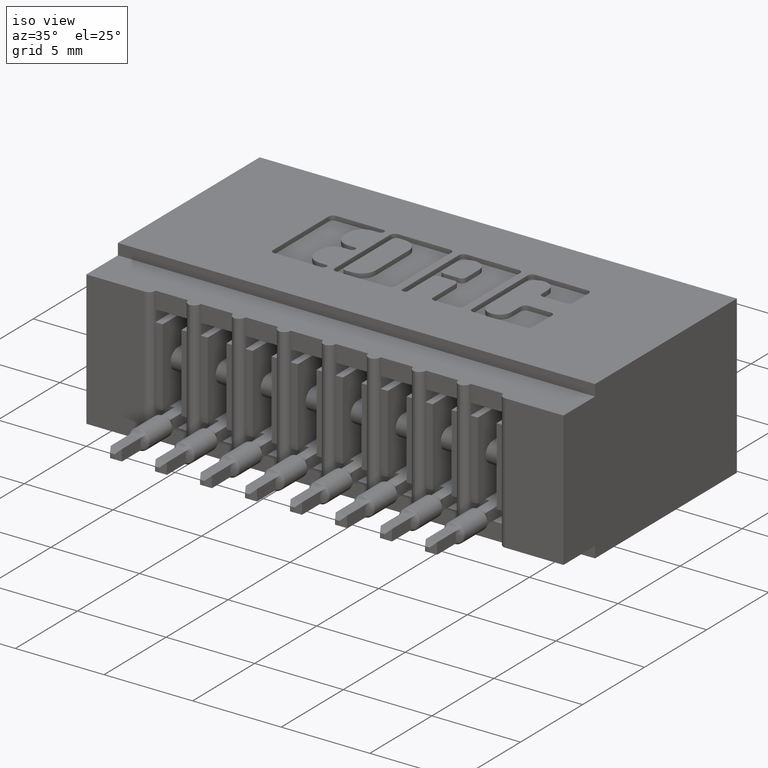
[diagram: clean part render]
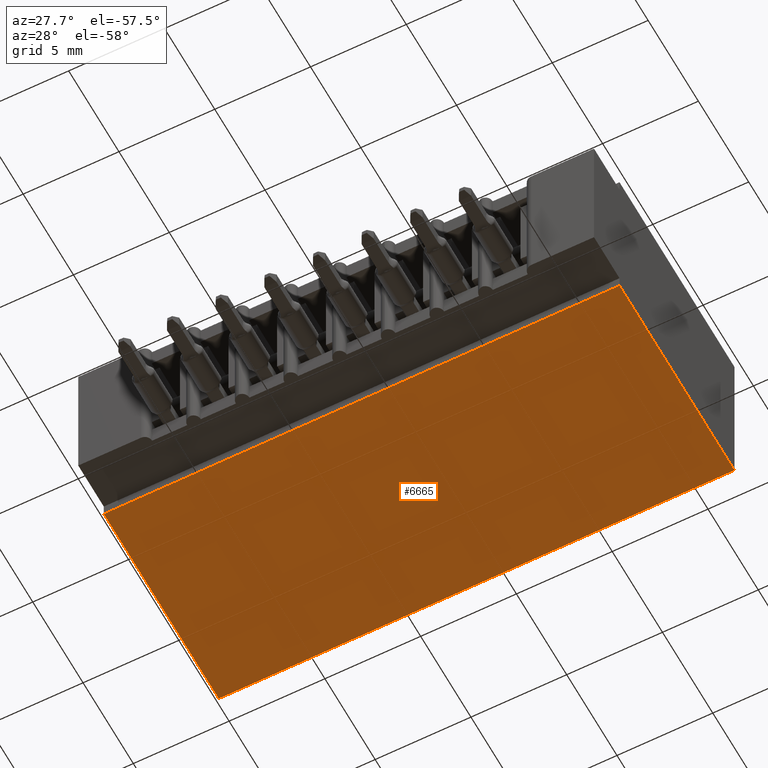
[diagram: tour spotlight — one face highlighted and labeled with its STEP entity id]
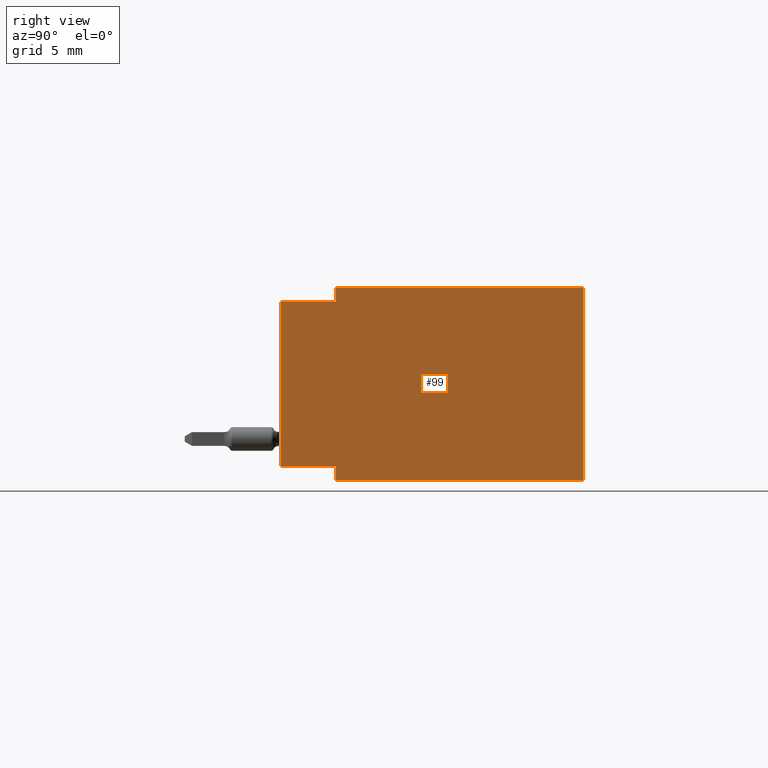
[diagram: tour spotlight — one face highlighted and labeled with its STEP entity id]
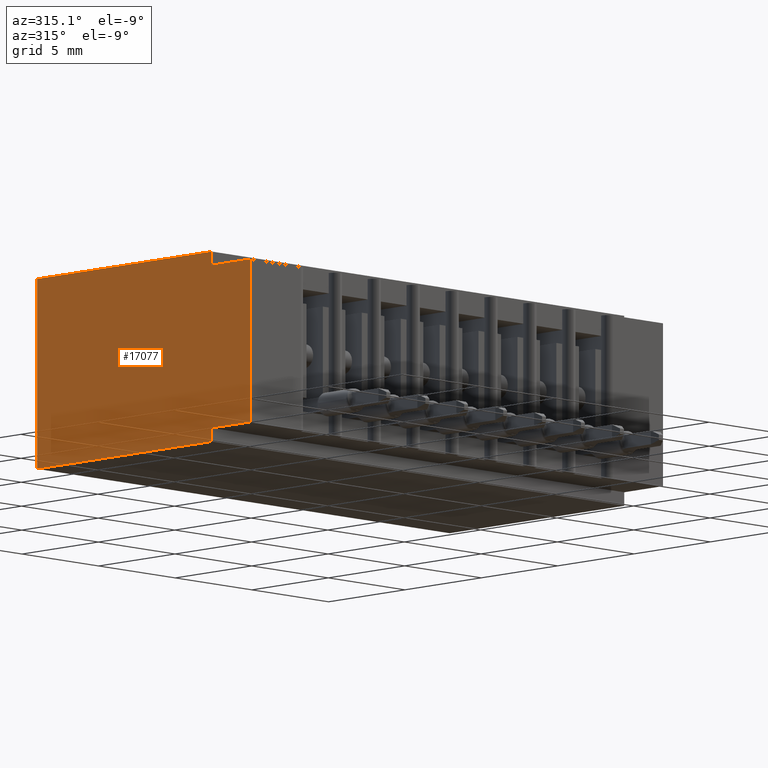
[diagram: tour spotlight — one face highlighted and labeled with its STEP entity id]
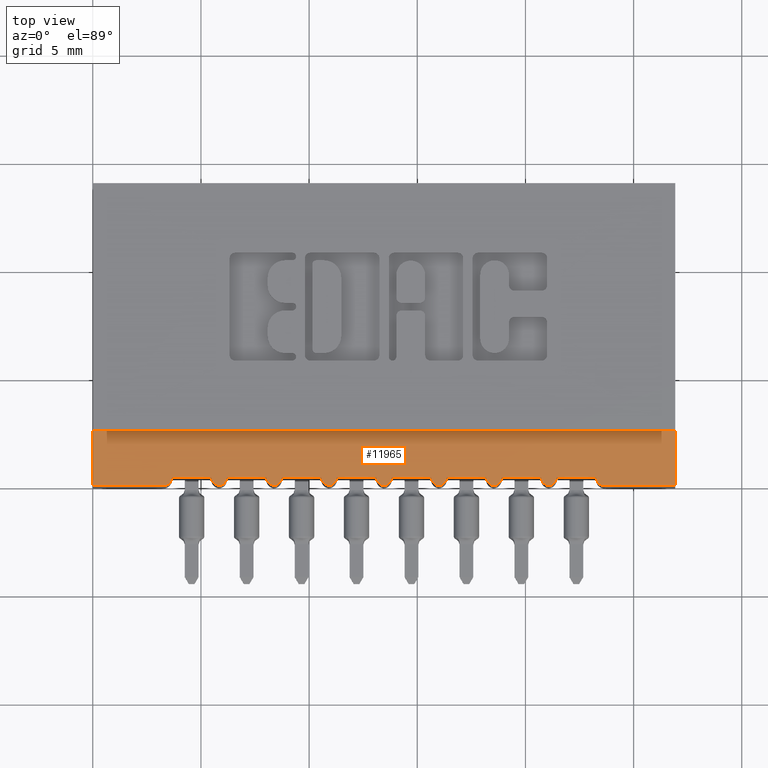
[diagram: tour spotlight — one face highlighted and labeled with its STEP entity id]
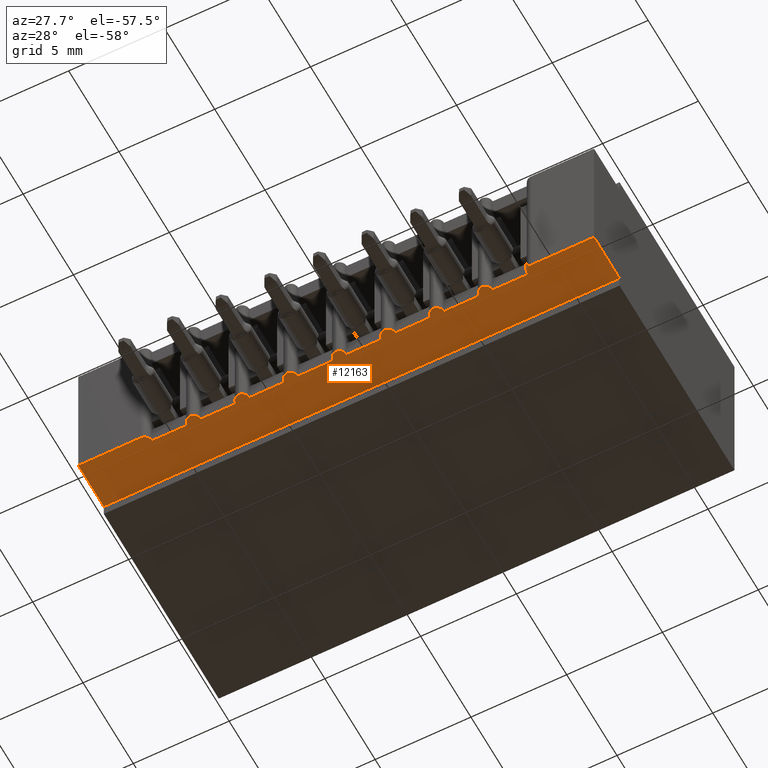
[diagram: tour spotlight — one face highlighted and labeled with its STEP entity id]
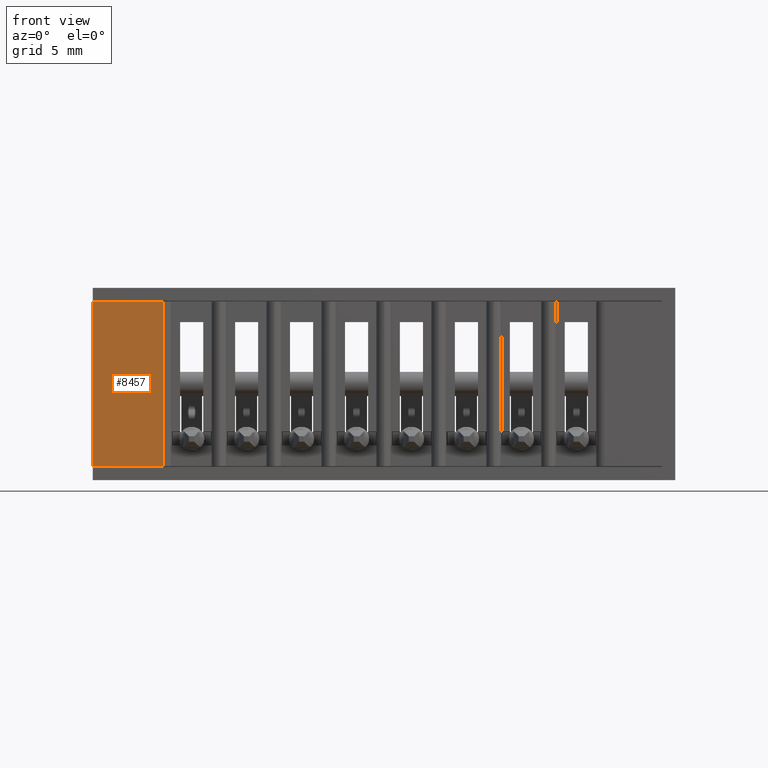
[diagram: tour spotlight — one face highlighted and labeled with its STEP entity id]
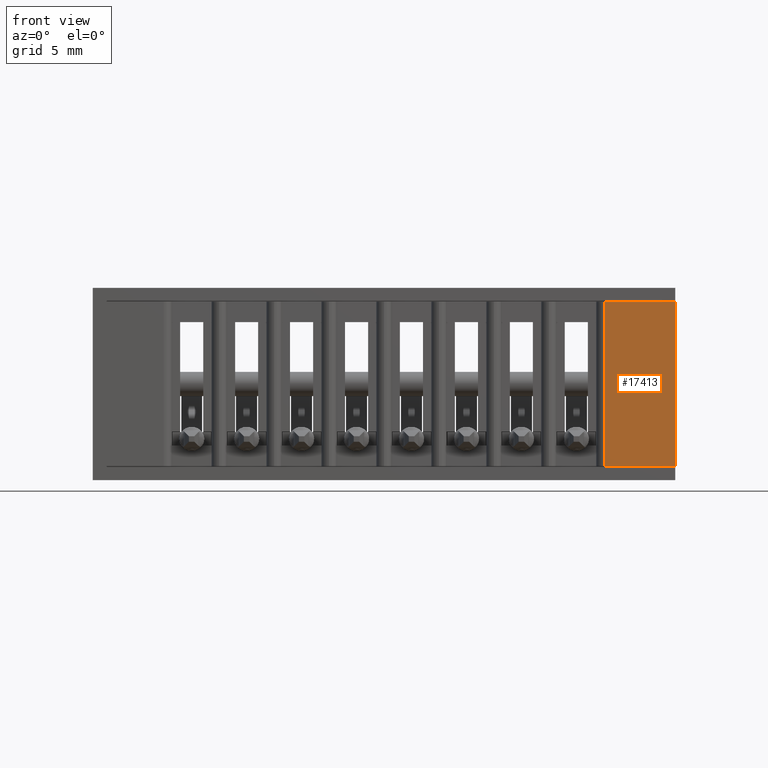
[diagram: tour spotlight — one face highlighted and labeled with its STEP entity id]
A machine part: a face-by-face anatomy tour. The part has 991 B-rep faces; the first image is the clean iso view, then the 7 largest visible faces are spotlighted one at a time (largest first), each with its STEP entity span.

Face 1 — auxiliary view, entity #6665. In plain terms, the highlighted planar face has unit normal (0, 0, 1).
Definition (entity closure, byte-faithful):
#203 = DIRECTION ( 'NONE',  ( -0.0000000000000000000, -1.000000000000000000, -0.0000000000000000000 ) ) ;
#255 = VECTOR ( 'NONE', #10882, 39.37007874015748100 ) ;
#368 = CARTESIAN_POINT ( 'NONE',  ( 0.0000000000000000000, 0.5500000000000000400, -0.3499999999999999800 ) ) ;
#831 = CARTESIAN_POINT ( 'NONE',  ( 1.060000000000000100, 0.5500000000000000400, -0.3499999999999999800 ) ) ;
#838 = EDGE_CURVE ( 'NONE', #9658, #8423, #14376, .T. ) ;
#2014 = EDGE_CURVE ( 'NONE', #4021, #5165, #14112, .T. ) ;
#3668 = EDGE_CURVE ( 'NONE', #5165, #8423, #10347, .T. ) ;
#4021 = VERTEX_POINT ( 'NONE', #831 ) ;
#4522 = CARTESIAN_POINT ( 'NONE',  ( 1.060000000000000100, 0.5500000000000000400, -0.3499999999999999800 ) ) ;
#5165 = VERTEX_POINT ( 'NONE', #8118 ) ;
#5338 = CARTESIAN_POINT ( 'NONE',  ( 0.0000000000000000000, 0.5500000000000000400, -0.3499999999999999800 ) ) ;
#5533 = VECTOR ( 'NONE', #5905, 39.37007874015748100 ) ;
#5626 = DIRECTION ( 'NONE',  ( -1.000000000000000000, -0.0000000000000000000, -0.0000000000000000000 ) ) ;
#5905 = DIRECTION ( 'NONE',  ( -0.0000000000000000000, -1.000000000000000000, -0.0000000000000000000 ) ) ;
#5960 = PLANE ( 'NONE',  #12107 ) ;
#6576 = ORIENTED_EDGE ( 'NONE', *, *, #3668, .T. ) ;
#6665 = ADVANCED_FACE ( 'NONE', ( #16054 ), #5960, .F. ) ;
#6673 = VECTOR ( 'NONE', #5626, 39.37007874015748100 ) ;
#7109 = CARTESIAN_POINT ( 'NONE',  ( 0.0000000000000000000, 0.5500000000000000400, -0.3499999999999999800 ) ) ;
#8118 = CARTESIAN_POINT ( 'NONE',  ( 1.060000000000000100, 0.1000000000000000100, -0.3499999999999999800 ) ) ;
#8423 = VERTEX_POINT ( 'NONE', #12237 ) ;
#8740 = DIRECTION ( 'NONE',  ( 1.000000000000000000, 0.0000000000000000000, -0.0000000000000000000 ) ) ;
#9658 = VERTEX_POINT ( 'NONE', #368 ) ;
#10347 = LINE ( 'NONE', #15231, #6673 ) ;
#10882 = DIRECTION ( 'NONE',  ( -1.000000000000000000, -0.0000000000000000000, -0.0000000000000000000 ) ) ;
#11418 = CARTESIAN_POINT ( 'NONE',  ( 0.0000000000000000000, 0.5500000000000000400, -0.3499999999999999800 ) ) ;
#12107 = AXIS2_PLACEMENT_3D ( 'NONE', #11418, #16922, #8740 ) ;
#12237 = CARTESIAN_POINT ( 'NONE',  ( 0.0000000000000000000, 0.1000000000000000100, -0.3499999999999999800 ) ) ;
#13628 = ORIENTED_EDGE ( 'NONE', *, *, #838, .F. ) ;
#13672 = ORIENTED_EDGE ( 'NONE', *, *, #15712, .F. ) ;
#14065 = ORIENTED_EDGE ( 'NONE', *, *, #2014, .T. ) ;
#14112 = LINE ( 'NONE', #4522, #5533 ) ;
#14376 = LINE ( 'NONE', #7109, #17593 ) ;
#14919 = LINE ( 'NONE', #5338, #255 ) ;
#15231 = CARTESIAN_POINT ( 'NONE',  ( 1.060000000000000100, 0.1000000000000000100, -0.3499999999999999800 ) ) ;
#15384 = EDGE_LOOP ( 'NONE', ( #14065, #6576, #13628, #13672 ) ) ;
#15712 = EDGE_CURVE ( 'NONE', #4021, #9658, #14919, .T. ) ;
#16054 = FACE_OUTER_BOUND ( 'NONE', #15384, .T. ) ;
#16922 = DIRECTION ( 'NONE',  ( 0.0000000000000000000, 0.0000000000000000000, 1.000000000000000000 ) ) ;
#17593 = VECTOR ( 'NONE', #203, 39.37007874015748100 ) ;

Face 2 — right view, entity #99. In plain terms, the highlighted planar face has unit normal (-1, 0, 0).
Definition (entity closure, byte-faithful):
#99 = ADVANCED_FACE ( 'NONE', ( #4520 ), #3218, .F. ) ;
#259 = VERTEX_POINT ( 'NONE', #10659 ) ;
#356 = CARTESIAN_POINT ( 'NONE',  ( 1.060000000000000100, 0.5500000000000000400, 0.0000000000000000000 ) ) ;
#831 = CARTESIAN_POINT ( 'NONE',  ( 1.060000000000000100, 0.5500000000000000400, -0.3499999999999999800 ) ) ;
#915 = EDGE_CURVE ( 'NONE', #8973, #15291, #2543, .T. ) ;
#1378 = ORIENTED_EDGE ( 'NONE', *, *, #6450, .T. ) ;
#1394 = LINE ( 'NONE', #9764, #5084 ) ;
#1468 = DIRECTION ( 'NONE',  ( -0.0000000000000000000, -0.0000000000000000000, -1.000000000000000000 ) ) ;
#1496 = CARTESIAN_POINT ( 'NONE',  ( 1.060000000000000100, 0.0000000000000000000, -0.02500000000000000500 ) ) ;
#1805 = EDGE_CURVE ( 'NONE', #6286, #4021, #2942, .T. ) ;
#2014 = EDGE_CURVE ( 'NONE', #4021, #5165, #14112, .T. ) ;
#2347 = CARTESIAN_POINT ( 'NONE',  ( 1.060000000000000100, 0.5500000000000000400, 0.0000000000000000000 ) ) ;
#2471 = EDGE_CURVE ( 'NONE', #259, #5165, #1394, .T. ) ;
#2543 = LINE ( 'NONE', #16884, #17172 ) ;
#2623 = ORIENTED_EDGE ( 'NONE', *, *, #1805, .F. ) ;
#2942 = LINE ( 'NONE', #12011, #12638 ) ;
#3040 = EDGE_LOOP ( 'NONE', ( #1378, #17612, #14535, #16570, #8482, #7132, #2623, #7123 ) ) ;
#3218 = PLANE ( 'NONE',  #6443 ) ;
#3224 = VECTOR ( 'NONE', #15742, 39.37007874015748100 ) ;
#4021 = VERTEX_POINT ( 'NONE', #831 ) ;
#4520 = FACE_OUTER_BOUND ( 'NONE', #3040, .T. ) ;
#4522 = CARTESIAN_POINT ( 'NONE',  ( 1.060000000000000100, 0.5500000000000000400, -0.3499999999999999800 ) ) ;
#4627 = DIRECTION ( 'NONE',  ( -1.000000000000000000, 0.0000000000000000000, 0.0000000000000000000 ) ) ;
#4762 = CARTESIAN_POINT ( 'NONE',  ( 1.060000000000000100, 0.0000000000000000000, -0.3249999999999999600 ) ) ;
#4804 = EDGE_CURVE ( 'NONE', #6286, #8106, #16916, .T. ) ;
#5084 = VECTOR ( 'NONE', #1468, 39.37007874015748100 ) ;
#5165 = VERTEX_POINT ( 'NONE', #8118 ) ;
#5331 = VERTEX_POINT ( 'NONE', #9927 ) ;
#5533 = VECTOR ( 'NONE', #5905, 39.37007874015748100 ) ;
#5905 = DIRECTION ( 'NONE',  ( -0.0000000000000000000, -1.000000000000000000, -0.0000000000000000000 ) ) ;
#5983 = VECTOR ( 'NONE', #10060, 39.37007874015748100 ) ;
#6286 = VERTEX_POINT ( 'NONE', #2347 ) ;
#6443 = AXIS2_PLACEMENT_3D ( 'NONE', #7319, #4627, #14204 ) ;
#6450 = EDGE_CURVE ( 'NONE', #8106, #5331, #17129, .T. ) ;
#6469 = DIRECTION ( 'NONE',  ( 0.0000000000000000000, 0.0000000000000000000, -1.000000000000000000 ) ) ;
#7123 = ORIENTED_EDGE ( 'NONE', *, *, #4804, .T. ) ;
#7132 = ORIENTED_EDGE ( 'NONE', *, *, #2014, .F. ) ;
#7319 = CARTESIAN_POINT ( 'NONE',  ( 1.060000000000000100, 0.5500000000000000400, 0.0000000000000000000 ) ) ;
#8106 = VERTEX_POINT ( 'NONE', #11358 ) ;
#8118 = CARTESIAN_POINT ( 'NONE',  ( 1.060000000000000100, 0.1000000000000000100, -0.3499999999999999800 ) ) ;
#8482 = ORIENTED_EDGE ( 'NONE', *, *, #2471, .T. ) ;
#8693 = DIRECTION ( 'NONE',  ( 0.0000000000000000000, 0.0000000000000000000, -1.000000000000000000 ) ) ;
#8973 = VERTEX_POINT ( 'NONE', #1496 ) ;
#9343 = CARTESIAN_POINT ( 'NONE',  ( 1.060000000000000100, 0.0000000000000000000, -0.02500000000000000500 ) ) ;
#9764 = CARTESIAN_POINT ( 'NONE',  ( 1.060000000000000100, 0.1000000000000000100, -0.3499999999999999800 ) ) ;
#9927 = CARTESIAN_POINT ( 'NONE',  ( 1.060000000000000100, 0.1000000000000000100, -0.02500000000000000500 ) ) ;
#10060 = DIRECTION ( 'NONE',  ( -0.0000000000000000000, -1.000000000000000000, -0.0000000000000000000 ) ) ;
#10315 = EDGE_CURVE ( 'NONE', #5331, #8973, #16248, .T. ) ;
#10583 = LINE ( 'NONE', #4762, #3224 ) ;
#10600 = DIRECTION ( 'NONE',  ( -0.0000000000000000000, -1.000000000000000000, -0.0000000000000000000 ) ) ;
#10659 = CARTESIAN_POINT ( 'NONE',  ( 1.060000000000000100, 0.1000000000000000100, -0.3249999999999999600 ) ) ;
#11358 = CARTESIAN_POINT ( 'NONE',  ( 1.060000000000000100, 0.1000000000000000100, 0.0000000000000000000 ) ) ;
#12011 = CARTESIAN_POINT ( 'NONE',  ( 1.060000000000000100, 0.5500000000000000400, 0.0000000000000000000 ) ) ;
#12611 = VECTOR ( 'NONE', #10600, 39.37007874015748100 ) ;
#12638 = VECTOR ( 'NONE', #6469, 39.37007874015748100 ) ;
#14032 = CARTESIAN_POINT ( 'NONE',  ( 1.060000000000000100, 0.0000000000000000000, -0.3249999999999999600 ) ) ;
#14112 = LINE ( 'NONE', #4522, #5533 ) ;
#14204 = DIRECTION ( 'NONE',  ( 0.0000000000000000000, 0.0000000000000000000, 1.000000000000000000 ) ) ;
#14535 = ORIENTED_EDGE ( 'NONE', *, *, #915, .T. ) ;
#14894 = EDGE_CURVE ( 'NONE', #15291, #259, #10583, .T. ) ;
#15291 = VERTEX_POINT ( 'NONE', #14032 ) ;
#15742 = DIRECTION ( 'NONE',  ( 0.0000000000000000000, 1.000000000000000000, 0.0000000000000000000 ) ) ;
#16248 = LINE ( 'NONE', #9343, #12611 ) ;
#16289 = DIRECTION ( 'NONE',  ( 0.0000000000000000000, 0.0000000000000000000, -1.000000000000000000 ) ) ;
#16570 = ORIENTED_EDGE ( 'NONE', *, *, #14894, .T. ) ;
#16691 = VECTOR ( 'NONE', #16289, 39.37007874015748100 ) ;
#16884 = CARTESIAN_POINT ( 'NONE',  ( 1.060000000000000100, 0.0000000000000000000, 0.0000000000000000000 ) ) ;
#16916 = LINE ( 'NONE', #356, #5983 ) ;
#17129 = LINE ( 'NONE', #17707, #16691 ) ;
#17172 = VECTOR ( 'NONE', #8693, 39.37007874015748100 ) ;
#17612 = ORIENTED_EDGE ( 'NONE', *, *, #10315, .T. ) ;
#17707 = CARTESIAN_POINT ( 'NONE',  ( 1.060000000000000100, 0.1000000000000000100, 0.0000000000000000000 ) ) ;

Face 3 — auxiliary view, entity #17077. In plain terms, the highlighted planar face has unit normal (1, 0, 0).
Definition (entity closure, byte-faithful):
#203 = DIRECTION ( 'NONE',  ( -0.0000000000000000000, -1.000000000000000000, -0.0000000000000000000 ) ) ;
#368 = CARTESIAN_POINT ( 'NONE',  ( 0.0000000000000000000, 0.5500000000000000400, -0.3499999999999999800 ) ) ;
#665 = VERTEX_POINT ( 'NONE', #11460 ) ;
#838 = EDGE_CURVE ( 'NONE', #9658, #8423, #14376, .T. ) ;
#1123 = VERTEX_POINT ( 'NONE', #2293 ) ;
#1142 = ORIENTED_EDGE ( 'NONE', *, *, #838, .T. ) ;
#1754 = VECTOR ( 'NONE', #9919, 39.37007874015748100 ) ;
#1795 = ORIENTED_EDGE ( 'NONE', *, *, #7815, .F. ) ;
#1810 = CARTESIAN_POINT ( 'NONE',  ( 0.0000000000000000000, 0.5500000000000000400, 0.0000000000000000000 ) ) ;
#1944 = VECTOR ( 'NONE', #12769, 39.37007874015748100 ) ;
#2042 = LINE ( 'NONE', #10564, #12592 ) ;
#2293 = CARTESIAN_POINT ( 'NONE',  ( 0.0000000000000000000, 0.1000000000000000100, 0.0000000000000000000 ) ) ;
#2440 = VERTEX_POINT ( 'NONE', #12324 ) ;
#3163 = EDGE_CURVE ( 'NONE', #1123, #7624, #16551, .T. ) ;
#3204 = CARTESIAN_POINT ( 'NONE',  ( 0.0000000000000000000, 0.1000000000000000100, -0.3249999999999999600 ) ) ;
#4076 = CARTESIAN_POINT ( 'NONE',  ( 0.0000000000000000000, 0.0000000000000000000, -0.3249999999999999600 ) ) ;
#4112 = EDGE_CURVE ( 'NONE', #17365, #8423, #16727, .T. ) ;
#4302 = CARTESIAN_POINT ( 'NONE',  ( 0.0000000000000000000, 0.1000000000000000100, 0.0000000000000000000 ) ) ;
#4751 = VECTOR ( 'NONE', #16663, 39.37007874015748100 ) ;
#5778 = VECTOR ( 'NONE', #9456, 39.37007874015748100 ) ;
#7109 = CARTESIAN_POINT ( 'NONE',  ( 0.0000000000000000000, 0.5500000000000000400, -0.3499999999999999800 ) ) ;
#7386 = EDGE_LOOP ( 'NONE', ( #9327, #15307, #8877, #1795, #10070, #1142, #8127, #10667 ) ) ;
#7624 = VERTEX_POINT ( 'NONE', #12974 ) ;
#7815 = EDGE_CURVE ( 'NONE', #665, #1123, #8938, .T. ) ;
#7994 = DIRECTION ( 'NONE',  ( 1.000000000000000000, -0.0000000000000000000, 0.0000000000000000000 ) ) ;
#8127 = ORIENTED_EDGE ( 'NONE', *, *, #4112, .F. ) ;
#8423 = VERTEX_POINT ( 'NONE', #12237 ) ;
#8472 = EDGE_CURVE ( 'NONE', #7624, #2440, #15973, .T. ) ;
#8877 = ORIENTED_EDGE ( 'NONE', *, *, #3163, .F. ) ;
#8938 = LINE ( 'NONE', #12029, #15786 ) ;
#9327 = ORIENTED_EDGE ( 'NONE', *, *, #11371, .T. ) ;
#9456 = DIRECTION ( 'NONE',  ( -0.0000000000000000000, -0.0000000000000000000, -1.000000000000000000 ) ) ;
#9658 = VERTEX_POINT ( 'NONE', #368 ) ;
#9919 = DIRECTION ( 'NONE',  ( -0.0000000000000000000, -1.000000000000000000, -0.0000000000000000000 ) ) ;
#10014 = VERTEX_POINT ( 'NONE', #4076 ) ;
#10070 = ORIENTED_EDGE ( 'NONE', *, *, #17353, .F. ) ;
#10564 = CARTESIAN_POINT ( 'NONE',  ( 0.0000000000000000000, 0.0000000000000000000, 0.0000000000000000000 ) ) ;
#10660 = DIRECTION ( 'NONE',  ( -0.0000000000000000000, -1.000000000000000000, -0.0000000000000000000 ) ) ;
#10667 = ORIENTED_EDGE ( 'NONE', *, *, #13943, .F. ) ;
#10721 = PLANE ( 'NONE',  #14995 ) ;
#10768 = DIRECTION ( 'NONE',  ( 0.0000000000000000000, 1.000000000000000000, 0.0000000000000000000 ) ) ;
#11284 = CARTESIAN_POINT ( 'NONE',  ( 0.0000000000000000000, 0.0000000000000000000, -0.02500000000000000500 ) ) ;
#11371 = EDGE_CURVE ( 'NONE', #10014, #2440, #2042, .T. ) ;
#11460 = CARTESIAN_POINT ( 'NONE',  ( 0.0000000000000000000, 0.5500000000000000400, 0.0000000000000000000 ) ) ;
#11889 = LINE ( 'NONE', #12015, #14657 ) ;
#12015 = CARTESIAN_POINT ( 'NONE',  ( 0.0000000000000000000, 0.0000000000000000000, -0.3249999999999999600 ) ) ;
#12029 = CARTESIAN_POINT ( 'NONE',  ( 0.0000000000000000000, 0.5500000000000000400, 0.0000000000000000000 ) ) ;
#12237 = CARTESIAN_POINT ( 'NONE',  ( 0.0000000000000000000, 0.1000000000000000100, -0.3499999999999999800 ) ) ;
#12324 = CARTESIAN_POINT ( 'NONE',  ( 0.0000000000000000000, 0.0000000000000000000, -0.02500000000000000500 ) ) ;
#12592 = VECTOR ( 'NONE', #13298, 39.37007874015748100 ) ;
#12769 = DIRECTION ( 'NONE',  ( -0.0000000000000000000, -0.0000000000000000000, 1.000000000000000000 ) ) ;
#12974 = CARTESIAN_POINT ( 'NONE',  ( 0.0000000000000000000, 0.1000000000000000100, -0.02500000000000000500 ) ) ;
#13298 = DIRECTION ( 'NONE',  ( -0.0000000000000000000, -0.0000000000000000000, 1.000000000000000000 ) ) ;
#13943 = EDGE_CURVE ( 'NONE', #10014, #17365, #11889, .T. ) ;
#14376 = LINE ( 'NONE', #7109, #17593 ) ;
#14657 = VECTOR ( 'NONE', #10768, 39.37007874015748100 ) ;
#14859 = CARTESIAN_POINT ( 'NONE',  ( 0.0000000000000000000, 0.1000000000000000100, -0.3499999999999999800 ) ) ;
#14995 = AXIS2_PLACEMENT_3D ( 'NONE', #16204, #7994, #17579 ) ;
#15307 = ORIENTED_EDGE ( 'NONE', *, *, #8472, .F. ) ;
#15786 = VECTOR ( 'NONE', #10660, 39.37007874015748100 ) ;
#15973 = LINE ( 'NONE', #11284, #1754 ) ;
#16204 = CARTESIAN_POINT ( 'NONE',  ( 0.0000000000000000000, 0.5500000000000000400, 0.0000000000000000000 ) ) ;
#16551 = LINE ( 'NONE', #4302, #4751 ) ;
#16565 = LINE ( 'NONE', #1810, #1944 ) ;
#16663 = DIRECTION ( 'NONE',  ( 0.0000000000000000000, 0.0000000000000000000, -1.000000000000000000 ) ) ;
#16727 = LINE ( 'NONE', #14859, #5778 ) ;
#17077 = ADVANCED_FACE ( 'NONE', ( #17226 ), #10721, .F. ) ;
#17226 = FACE_OUTER_BOUND ( 'NONE', #7386, .T. ) ;
#17353 = EDGE_CURVE ( 'NONE', #9658, #665, #16565, .T. ) ;
#17365 = VERTEX_POINT ( 'NONE', #3204 ) ;
#17579 = DIRECTION ( 'NONE',  ( 0.0000000000000000000, 0.0000000000000000000, -1.000000000000000000 ) ) ;
#17593 = VECTOR ( 'NONE', #203, 39.37007874015748100 ) ;

Face 4 — top view, entity #11965. In plain terms, the highlighted planar face has unit normal (0, 0, -1).
Definition (entity closure, byte-faithful):
#6 = AXIS2_PLACEMENT_3D ( 'NONE', #14142, #5935, #15520 ) ;
#16 = VERTEX_POINT ( 'NONE', #16989 ) ;
#21 = VERTEX_POINT ( 'NONE', #14219 ) ;
#35 = CARTESIAN_POINT ( 'NONE',  ( 1.060000000000000100, 0.0000000000000000000, -0.02500000000000000500 ) ) ;
#128 = DIRECTION ( 'NONE',  ( -0.0000000000000000000, 0.0000000000000000000, 1.000000000000000000 ) ) ;
#430 = VERTEX_POINT ( 'NONE', #1331 ) ;
#454 = DIRECTION ( 'NONE',  ( 1.000000000000000000, 0.0000000000000000000, 0.0000000000000000000 ) ) ;
#531 = VECTOR ( 'NONE', #4827, 39.37007874015748100 ) ;
#532 = DIRECTION ( 'NONE',  ( 0.0000000000000000000, -0.0000000000000000000, -1.000000000000000000 ) ) ;
#546 = ORIENTED_EDGE ( 'NONE', *, *, #9661, .T. ) ;
#549 = CARTESIAN_POINT ( 'NONE',  ( 0.3589999999999997100, 0.01499999999999999400, -0.02499999999999999400 ) ) ;
#670 = DIRECTION ( 'NONE',  ( 0.0000000000000000000, -0.0000000000000000000, -1.000000000000000000 ) ) ;
#692 = EDGE_CURVE ( 'NONE', #14464, #14417, #17383, .T. ) ;
#743 = CARTESIAN_POINT ( 'NONE',  ( 0.5159999999999996800, 0.01499999999999993200, -0.02500000000000000500 ) ) ;
#767 = CIRCLE ( 'NONE', #17564, 0.01499999999999997700 ) ;
#770 = VERTEX_POINT ( 'NONE', #17204 ) ;
#875 = VERTEX_POINT ( 'NONE', #3066 ) ;
#944 = DIRECTION ( 'NONE',  ( 1.000000000000000000, -0.0000000000000000000, -2.307304048702925100E-016 ) ) ;
#950 = VECTOR ( 'NONE', #14423, 39.37007874015748100 ) ;
#1177 = FACE_OUTER_BOUND ( 'NONE', #1994, .T. ) ;
#1194 = CARTESIAN_POINT ( 'NONE',  ( 0.1289999999999997000, 0.01499999999999997700, -0.02500000000000000500 ) ) ;
#1331 = CARTESIAN_POINT ( 'NONE',  ( 0.5299999999999992500, 3.337045290420235600E-005, -0.02500000000000000500 ) ) ;
#1422 = VECTOR ( 'NONE', #3179, 39.37007874015748100 ) ;
#1488 = DIRECTION ( 'NONE',  ( -0.0000000000000000000, 0.0000000000000000000, 1.000000000000000000 ) ) ;
#1496 = CARTESIAN_POINT ( 'NONE',  ( 1.060000000000000100, 0.0000000000000000000, -0.02500000000000000500 ) ) ;
#1544 = EDGE_CURVE ( 'NONE', #875, #11130, #5986, .T. ) ;
#1634 = LINE ( 'NONE', #2209, #16271 ) ;
#1705 = ORIENTED_EDGE ( 'NONE', *, *, #10315, .F. ) ;
#1754 = VECTOR ( 'NONE', #9919, 39.37007874015748100 ) ;
#1799 = LINE ( 'NONE', #549, #7863 ) ;
#1852 = ORIENTED_EDGE ( 'NONE', *, *, #9871, .T. ) ;
#1873 = CARTESIAN_POINT ( 'NONE',  ( 0.2159999999999996900, 0.01499999999999993200, -0.02500000000000000500 ) ) ;
#1886 = EDGE_CURVE ( 'NONE', #14695, #4617, #767, .T. ) ;
#1994 = EDGE_LOOP ( 'NONE', ( #6407, #15993, #7899, #1705, #1852, #11669, #17277, #12732, #11481, #12303, #5276, #546, #11522, #11563, #6779, #12609, #10578, #13887, #16791, #4610, #3701, #6088, #17424, #3096, #11554, #6127, #6174, #15564, #13654 ) ) ;
#2011 = DIRECTION ( 'NONE',  ( 1.000000000000000000, -0.0000000000000000000, -2.307304048702925100E-016 ) ) ;
#2053 = CARTESIAN_POINT ( 'NONE',  ( 0.8159999999999997300, 0.01499999999999993200, -0.02500000000000000500 ) ) ;
#2122 = EDGE_CURVE ( 'NONE', #8973, #14464, #14753, .T. ) ;
#2140 = CARTESIAN_POINT ( 'NONE',  ( 0.6289999999999997800, 0.01499999999999997700, -0.02500000000000000500 ) ) ;
#2209 = CARTESIAN_POINT ( 'NONE',  ( 1.060000000000000100, 0.1000000000000000100, -0.02500000000000000500 ) ) ;
#2277 = DIRECTION ( 'NONE',  ( -1.000000000000000000, -0.0000000000000000000, -0.0000000000000000000 ) ) ;
#2353 = CARTESIAN_POINT ( 'NONE',  ( 0.8289999999999996300, 0.01499999999999997700, -0.02500000000000000500 ) ) ;
#2380 = CARTESIAN_POINT ( 'NONE',  ( 0.8439999999999996400, 0.01499999999999997500, -0.02500000000000000500 ) ) ;
#2440 = VERTEX_POINT ( 'NONE', #12324 ) ;
#2547 = CARTESIAN_POINT ( 'NONE',  ( 0.7309999999999996500, 0.01499999999999991600, -0.02500000000000000500 ) ) ;
#2582 = DIRECTION ( 'NONE',  ( 1.000000000000000000, 0.0000000000000000000, 0.0000000000000000000 ) ) ;
#2736 = AXIS2_PLACEMENT_3D ( 'NONE', #2547, #12196, #3945 ) ;
#2773 = EDGE_CURVE ( 'NONE', #11687, #9508, #11226, .T. ) ;
#3007 = CARTESIAN_POINT ( 'NONE',  ( 0.3439999999999996400, 0.01499999999999997500, -0.02500000000000000500 ) ) ;
#3041 = EDGE_CURVE ( 'NONE', #4859, #9389, #17403, .T. ) ;
#3066 = CARTESIAN_POINT ( 'NONE',  ( 0.2299999999999992300, 3.337045290419808700E-005, -0.02500000000000000500 ) ) ;
#3096 = ORIENTED_EDGE ( 'NONE', *, *, #4089, .T. ) ;
#3145 = LINE ( 'NONE', #35, #6403 ) ;
#3179 = DIRECTION ( 'NONE',  ( 1.000000000000000000, -0.0000000000000000000, -2.307304048702925100E-016 ) ) ;
#3536 = DIRECTION ( 'NONE',  ( 1.000000000000000000, 0.0000000000000000000, 0.0000000000000000000 ) ) ;
#3548 = VERTEX_POINT ( 'NONE', #17631 ) ;
#3701 = ORIENTED_EDGE ( 'NONE', *, *, #16062, .T. ) ;
#3750 = DIRECTION ( 'NONE',  ( 1.000000000000000000, 0.0000000000000000000, 0.0000000000000000000 ) ) ;
#3827 = CARTESIAN_POINT ( 'NONE',  ( 0.6589999999999997000, 0.01499999999999999400, -0.02499999999999999400 ) ) ;
#3945 = DIRECTION ( 'NONE',  ( 1.000000000000000000, 0.0000000000000000000, 0.0000000000000000000 ) ) ;
#4008 = CARTESIAN_POINT ( 'NONE',  ( 0.5309999999999996900, 0.01499999999999991600, -0.02500000000000000500 ) ) ;
#4089 = EDGE_CURVE ( 'NONE', #9508, #14715, #7076, .T. ) ;
#4176 = DIRECTION ( 'NONE',  ( -1.000000000000000000, -0.0000000000000000000, -0.0000000000000000000 ) ) ;
#4458 = CIRCLE ( 'NONE', #7357, 0.01499999999999997700 ) ;
#4561 = EDGE_CURVE ( 'NONE', #770, #11130, #17576, .T. ) ;
#4610 = ORIENTED_EDGE ( 'NONE', *, *, #4711, .T. ) ;
#4617 = VERTEX_POINT ( 'NONE', #15934 ) ;
#4711 = EDGE_CURVE ( 'NONE', #430, #16, #7712, .T. ) ;
#4827 = DIRECTION ( 'NONE',  ( -1.000000000000000000, -0.0000000000000000000, -0.0000000000000000000 ) ) ;
#4849 = CIRCLE ( 'NONE', #16020, 0.01499999999999997700 ) ;
#4859 = VERTEX_POINT ( 'NONE', #10114 ) ;
#5025 = CARTESIAN_POINT ( 'NONE',  ( 0.7439999999999996600, 0.01499999999999997500, -0.02500000000000000500 ) ) ;
#5099 = EDGE_CURVE ( 'NONE', #11687, #3548, #12636, .T. ) ;
#5125 = EDGE_CURVE ( 'NONE', #12725, #14715, #8568, .T. ) ;
#5132 = CARTESIAN_POINT ( 'NONE',  ( 0.4589999999999996900, 0.01499999999999999400, -0.02499999999999999400 ) ) ;
#5137 = EDGE_CURVE ( 'NONE', #430, #10155, #4458, .T. ) ;
#5203 = DIRECTION ( 'NONE',  ( 0.0000000000000000000, -0.0000000000000000000, -1.000000000000000000 ) ) ;
#5223 = EDGE_CURVE ( 'NONE', #875, #6371, #14109, .T. ) ;
#5244 = EDGE_CURVE ( 'NONE', #21, #2440, #3145, .T. ) ;
#5276 = ORIENTED_EDGE ( 'NONE', *, *, #5223, .T. ) ;
#5331 = VERTEX_POINT ( 'NONE', #9927 ) ;
#5381 = EDGE_CURVE ( 'NONE', #4859, #9052, #15182, .T. ) ;
#5388 = DIRECTION ( 'NONE',  ( 1.000000000000000000, 0.0000000000000000000, 0.0000000000000000000 ) ) ;
#5540 = LINE ( 'NONE', #7335, #1422 ) ;
#5715 = EDGE_CURVE ( 'NONE', #21, #770, #17546, .T. ) ;
#5725 = CARTESIAN_POINT ( 'NONE',  ( 0.4299999999999992200, 3.337045290420235600E-005, -0.02500000000000000500 ) ) ;
#5767 = CARTESIAN_POINT ( 'NONE',  ( 0.5289999999999996900, 0.01499999999999997700, -0.02500000000000000500 ) ) ;
#5935 = DIRECTION ( 'NONE',  ( 0.0000000000000000000, -0.0000000000000000000, -1.000000000000000000 ) ) ;
#5986 = CIRCLE ( 'NONE', #6, 0.01499999999999997700 ) ;
#6088 = ORIENTED_EDGE ( 'NONE', *, *, #5099, .F. ) ;
#6127 = ORIENTED_EDGE ( 'NONE', *, *, #7400, .T. ) ;
#6174 = ORIENTED_EDGE ( 'NONE', *, *, #11234, .T. ) ;
#6196 = CARTESIAN_POINT ( 'NONE',  ( 0.4159999999999997600, 0.01499999999999993200, -0.02500000000000000500 ) ) ;
#6213 = CARTESIAN_POINT ( 'NONE',  ( 0.1589999999999997000, 0.01499999999999999400, -0.02499999999999999400 ) ) ;
#6219 = CARTESIAN_POINT ( 'NONE',  ( 0.7589999999999997900, 0.01499999999999999400, -0.02499999999999999400 ) ) ;
#6371 = VERTEX_POINT ( 'NONE', #16160 ) ;
#6403 = VECTOR ( 'NONE', #4176, 39.37007874015748100 ) ;
#6407 = ORIENTED_EDGE ( 'NONE', *, *, #14628, .T. ) ;
#6547 = LINE ( 'NONE', #7358, #9367 ) ;
#6639 = LINE ( 'NONE', #5132, #13492 ) ;
#6656 = VECTOR ( 'NONE', #10702, 39.37007874015748100 ) ;
#6688 = AXIS2_PLACEMENT_3D ( 'NONE', #1194, #10861, #2582 ) ;
#6779 = ORIENTED_EDGE ( 'NONE', *, *, #15462, .T. ) ;
#6782 = VERTEX_POINT ( 'NONE', #6196 ) ;
#6788 = EDGE_CURVE ( 'NONE', #14695, #6782, #7896, .T. ) ;
#6867 = CARTESIAN_POINT ( 'NONE',  ( 0.7299999999999992100, 3.337045290420235600E-005, -0.02500000000000000500 ) ) ;
#6907 = VERTEX_POINT ( 'NONE', #2380 ) ;
#6942 = CARTESIAN_POINT ( 'NONE',  ( 0.2289999999999997000, 0.01499999999999997700, -0.02500000000000000500 ) ) ;
#7022 = AXIS2_PLACEMENT_3D ( 'NONE', #16948, #8775, #454 ) ;
#7076 = LINE ( 'NONE', #3827, #6656 ) ;
#7140 = DIRECTION ( 'NONE',  ( 1.000000000000000000, 0.0000000000000000000, 0.0000000000000000000 ) ) ;
#7292 = VERTEX_POINT ( 'NONE', #5025 ) ;
#7335 = CARTESIAN_POINT ( 'NONE',  ( 0.2589999999999996700, 0.01499999999999999400, -0.02499999999999999400 ) ) ;
#7357 = AXIS2_PLACEMENT_3D ( 'NONE', #4008, #13599, #5388 ) ;
#7358 = CARTESIAN_POINT ( 'NONE',  ( 0.5589999999999997200, 0.01499999999999999400, -0.02499999999999999400 ) ) ;
#7400 = EDGE_CURVE ( 'NONE', #12725, #7292, #4849, .T. ) ;
#7580 = DIRECTION ( 'NONE',  ( 0.0000000000000000000, -0.0000000000000000000, -1.000000000000000000 ) ) ;
#7624 = VERTEX_POINT ( 'NONE', #12974 ) ;
#7712 = CIRCLE ( 'NONE', #15406, 0.01499999999999997700 ) ;
#7863 = VECTOR ( 'NONE', #2011, 39.37007874015748100 ) ;
#7896 = CIRCLE ( 'NONE', #16690, 0.01499999999999997700 ) ;
#7899 = ORIENTED_EDGE ( 'NONE', *, *, #2122, .F. ) ;
#8006 = VECTOR ( 'NONE', #15148, 39.37007874015748100 ) ;
#8034 = CARTESIAN_POINT ( 'NONE',  ( 0.9309999999999997200, 0.0000000000000000000, -0.02500000000000000500 ) ) ;
#8123 = AXIS2_PLACEMENT_3D ( 'NONE', #2353, #12002, #3750 ) ;
#8289 = DIRECTION ( 'NONE',  ( 0.0000000000000000000, -0.0000000000000000000, -1.000000000000000000 ) ) ;
#8359 = DIRECTION ( 'NONE',  ( 1.000000000000000000, 0.0000000000000000000, 0.0000000000000000000 ) ) ;
#8435 = CARTESIAN_POINT ( 'NONE',  ( 0.7289999999999996500, 0.01499999999999997700, -0.02500000000000000500 ) ) ;
#8472 = EDGE_CURVE ( 'NONE', #7624, #2440, #15973, .T. ) ;
#8568 = CIRCLE ( 'NONE', #2736, 0.01499999999999997700 ) ;
#8658 = CARTESIAN_POINT ( 'NONE',  ( 0.6299999999999993400, 3.337045290419381800E-005, -0.02500000000000000500 ) ) ;
#8717 = VERTEX_POINT ( 'NONE', #2053 ) ;
#8775 = DIRECTION ( 'NONE',  ( -0.0000000000000000000, 0.0000000000000000000, 1.000000000000000000 ) ) ;
#8838 = CARTESIAN_POINT ( 'NONE',  ( 0.9309999999999997200, 0.01499999999999991600, -0.02500000000000000500 ) ) ;
#8973 = VERTEX_POINT ( 'NONE', #1496 ) ;
#8980 = CARTESIAN_POINT ( 'NONE',  ( 0.4309999999999997200, 0.01499999999999991600, -0.02500000000000000500 ) ) ;
#9052 = VERTEX_POINT ( 'NONE', #3007 ) ;
#9267 = DIRECTION ( 'NONE',  ( -1.000000000000000000, 0.0000000000000000000, -0.0000000000000000000 ) ) ;
#9301 = EDGE_CURVE ( 'NONE', #13551, #6907, #17572, .T. ) ;
#9306 = EDGE_CURVE ( 'NONE', #4617, #10155, #6639, .T. ) ;
#9343 = CARTESIAN_POINT ( 'NONE',  ( 1.060000000000000100, 0.0000000000000000000, -0.02500000000000000500 ) ) ;
#9367 = VECTOR ( 'NONE', #15508, 39.37007874015748100 ) ;
#9389 = VERTEX_POINT ( 'NONE', #9442 ) ;
#9442 = CARTESIAN_POINT ( 'NONE',  ( 0.3159999999999997300, 0.01499999999999993200, -0.02500000000000000500 ) ) ;
#9508 = VERTEX_POINT ( 'NONE', #13697 ) ;
#9661 = EDGE_CURVE ( 'NONE', #6371, #9389, #5540, .T. ) ;
#9743 = EDGE_CURVE ( 'NONE', #13551, #8717, #13898, .T. ) ;
#9787 = CARTESIAN_POINT ( 'NONE',  ( 0.4289999999999997100, 0.01499999999999997700, -0.02500000000000000500 ) ) ;
#9823 = CARTESIAN_POINT ( 'NONE',  ( 0.8299999999999991800, 3.337045290420235600E-005, -0.02500000000000000500 ) ) ;
#9840 = DIRECTION ( 'NONE',  ( 1.000000000000000000, 0.0000000000000000000, 0.0000000000000000000 ) ) ;
#9871 = EDGE_CURVE ( 'NONE', #5331, #7624, #1634, .T. ) ;
#9919 = DIRECTION ( 'NONE',  ( -0.0000000000000000000, -1.000000000000000000, -0.0000000000000000000 ) ) ;
#9927 = CARTESIAN_POINT ( 'NONE',  ( 1.060000000000000100, 0.1000000000000000100, -0.02500000000000000500 ) ) ;
#10114 = CARTESIAN_POINT ( 'NONE',  ( 0.3299999999999992400, 3.337045290420235600E-005, -0.02500000000000000500 ) ) ;
#10155 = VERTEX_POINT ( 'NONE', #743 ) ;
#10218 = DIRECTION ( 'NONE',  ( 1.000000000000000000, 0.0000000000000000000, 0.0000000000000000000 ) ) ;
#10315 = EDGE_CURVE ( 'NONE', #5331, #8973, #16248, .T. ) ;
#10363 = DIRECTION ( 'NONE',  ( 1.000000000000000000, 0.0000000000000000000, 0.0000000000000000000 ) ) ;
#10578 = ORIENTED_EDGE ( 'NONE', *, *, #1886, .T. ) ;
#10582 = CARTESIAN_POINT ( 'NONE',  ( 1.060000000000000100, 0.0000000000000000000, -0.02500000000000000500 ) ) ;
#10600 = DIRECTION ( 'NONE',  ( -0.0000000000000000000, -1.000000000000000000, -0.0000000000000000000 ) ) ;
#10702 = DIRECTION ( 'NONE',  ( 1.000000000000000000, -0.0000000000000000000, -2.307304048702925100E-016 ) ) ;
#10861 = DIRECTION ( 'NONE',  ( -0.0000000000000000000, 0.0000000000000000000, 1.000000000000000000 ) ) ;
#11130 = VERTEX_POINT ( 'NONE', #1873 ) ;
#11169 = DIRECTION ( 'NONE',  ( 1.000000000000000000, 0.0000000000000000000, 0.0000000000000000000 ) ) ;
#11226 = CIRCLE ( 'NONE', #15618, 0.01499999999999997700 ) ;
#11234 = EDGE_CURVE ( 'NONE', #7292, #8717, #15162, .T. ) ;
#11284 = CARTESIAN_POINT ( 'NONE',  ( 0.0000000000000000000, 0.0000000000000000000, -0.02500000000000000500 ) ) ;
#11481 = ORIENTED_EDGE ( 'NONE', *, *, #4561, .T. ) ;
#11522 = ORIENTED_EDGE ( 'NONE', *, *, #3041, .F. ) ;
#11554 = ORIENTED_EDGE ( 'NONE', *, *, #5125, .F. ) ;
#11563 = ORIENTED_EDGE ( 'NONE', *, *, #5381, .T. ) ;
#11649 = LINE ( 'NONE', #13748, #8006 ) ;
#11669 = ORIENTED_EDGE ( 'NONE', *, *, #8472, .T. ) ;
#11687 = VERTEX_POINT ( 'NONE', #8658 ) ;
#11780 = DIRECTION ( 'NONE',  ( -0.0000000000000000000, 0.0000000000000000000, 1.000000000000000000 ) ) ;
#11965 = ADVANCED_FACE ( 'NONE', ( #1177 ), #16086, .F. ) ;
#12002 = DIRECTION ( 'NONE',  ( -0.0000000000000000000, 0.0000000000000000000, 1.000000000000000000 ) ) ;
#12196 = DIRECTION ( 'NONE',  ( 0.0000000000000000000, -0.0000000000000000000, -1.000000000000000000 ) ) ;
#12303 = ORIENTED_EDGE ( 'NONE', *, *, #1544, .F. ) ;
#12324 = CARTESIAN_POINT ( 'NONE',  ( 0.0000000000000000000, 0.0000000000000000000, -0.02500000000000000500 ) ) ;
#12609 = ORIENTED_EDGE ( 'NONE', *, *, #6788, .F. ) ;
#12611 = VECTOR ( 'NONE', #10600, 39.37007874015748100 ) ;
#12636 = CIRCLE ( 'NONE', #16898, 0.01499999999999997700 ) ;
#12725 = VERTEX_POINT ( 'NONE', #6867 ) ;
#12732 = ORIENTED_EDGE ( 'NONE', *, *, #5715, .T. ) ;
#12974 = CARTESIAN_POINT ( 'NONE',  ( 0.0000000000000000000, 0.1000000000000000100, -0.02500000000000000500 ) ) ;
#13062 = CARTESIAN_POINT ( 'NONE',  ( 1.060000000000000100, 0.0000000000000000000, -0.02500000000000000500 ) ) ;
#13357 = CARTESIAN_POINT ( 'NONE',  ( 0.9159999999999997000, 0.01499999999999993200, -0.02500000000000000500 ) ) ;
#13433 = CARTESIAN_POINT ( 'NONE',  ( 0.6309999999999996700, 0.01499999999999991600, -0.02500000000000000500 ) ) ;
#13492 = VECTOR ( 'NONE', #944, 39.37007874015748100 ) ;
#13551 = VERTEX_POINT ( 'NONE', #9823 ) ;
#13599 = DIRECTION ( 'NONE',  ( 0.0000000000000000000, -0.0000000000000000000, -1.000000000000000000 ) ) ;
#13654 = ORIENTED_EDGE ( 'NONE', *, *, #9301, .T. ) ;
#13697 = CARTESIAN_POINT ( 'NONE',  ( 0.6439999999999997900, 0.01499999999999997500, -0.02500000000000000500 ) ) ;
#13748 = CARTESIAN_POINT ( 'NONE',  ( 0.8589999999999997600, 0.01499999999999999400, -0.02499999999999999400 ) ) ;
#13774 = AXIS2_PLACEMENT_3D ( 'NONE', #6942, #16540, #8359 ) ;
#13887 = ORIENTED_EDGE ( 'NONE', *, *, #9306, .T. ) ;
#13898 = CIRCLE ( 'NONE', #15864, 0.01499999999999997700 ) ;
#14109 = CIRCLE ( 'NONE', #13774, 0.01499999999999997700 ) ;
#14142 = CARTESIAN_POINT ( 'NONE',  ( 0.2309999999999996800, 0.01499999999999991600, -0.02500000000000000500 ) ) ;
#14219 = CARTESIAN_POINT ( 'NONE',  ( 0.1289999999999997000, 0.0000000000000000000, -0.02500000000000000500 ) ) ;
#14367 = AXIS2_PLACEMENT_3D ( 'NONE', #10582, #17433, #9267 ) ;
#14417 = VERTEX_POINT ( 'NONE', #13357 ) ;
#14423 = DIRECTION ( 'NONE',  ( 1.000000000000000000, -0.0000000000000000000, -2.307304048702925100E-016 ) ) ;
#14464 = VERTEX_POINT ( 'NONE', #8034 ) ;
#14628 = EDGE_CURVE ( 'NONE', #6907, #14417, #11649, .T. ) ;
#14695 = VERTEX_POINT ( 'NONE', #5725 ) ;
#14715 = VERTEX_POINT ( 'NONE', #16704 ) ;
#14753 = LINE ( 'NONE', #13062, #531 ) ;
#14815 = DIRECTION ( 'NONE',  ( 1.000000000000000000, -8.537024980200835600E-016, 0.0000000000000000000 ) ) ;
#15148 = DIRECTION ( 'NONE',  ( 1.000000000000000000, -0.0000000000000000000, -2.307304048702925100E-016 ) ) ;
#15162 = LINE ( 'NONE', #6219, #950 ) ;
#15182 = CIRCLE ( 'NONE', #7022, 0.01499999999999997700 ) ;
#15262 = AXIS2_PLACEMENT_3D ( 'NONE', #16492, #8289, #17843 ) ;
#15274 = AXIS2_PLACEMENT_3D ( 'NONE', #8838, #532, #10218 ) ;
#15357 = DIRECTION ( 'NONE',  ( -0.0000000000000000000, 0.0000000000000000000, 1.000000000000000000 ) ) ;
#15406 = AXIS2_PLACEMENT_3D ( 'NONE', #5767, #15357, #7140 ) ;
#15462 = EDGE_CURVE ( 'NONE', #9052, #6782, #1799, .T. ) ;
#15508 = DIRECTION ( 'NONE',  ( 1.000000000000000000, -0.0000000000000000000, -2.307304048702925100E-016 ) ) ;
#15520 = DIRECTION ( 'NONE',  ( 1.000000000000000000, 0.0000000000000000000, 0.0000000000000000000 ) ) ;
#15564 = ORIENTED_EDGE ( 'NONE', *, *, #9743, .F. ) ;
#15618 = AXIS2_PLACEMENT_3D ( 'NONE', #2140, #11780, #3536 ) ;
#15807 = CARTESIAN_POINT ( 'NONE',  ( 0.8309999999999997400, 0.01499999999999991600, -0.02500000000000000500 ) ) ;
#15864 = AXIS2_PLACEMENT_3D ( 'NONE', #15807, #7580, #17175 ) ;
#15934 = CARTESIAN_POINT ( 'NONE',  ( 0.4439999999999996700, 0.01499999999999997500, -0.02500000000000000500 ) ) ;
#15973 = LINE ( 'NONE', #11284, #1754 ) ;
#15993 = ORIENTED_EDGE ( 'NONE', *, *, #692, .F. ) ;
#16020 = AXIS2_PLACEMENT_3D ( 'NONE', #8435, #128, #9840 ) ;
#16062 = EDGE_CURVE ( 'NONE', #16, #3548, #6547, .T. ) ;
#16086 = PLANE ( 'NONE',  #14367 ) ;
#16160 = CARTESIAN_POINT ( 'NONE',  ( 0.2439999999999996600, 0.01499999999999997500, -0.02500000000000000500 ) ) ;
#16248 = LINE ( 'NONE', #9343, #12611 ) ;
#16271 = VECTOR ( 'NONE', #2277, 39.37007874015748100 ) ;
#16492 = CARTESIAN_POINT ( 'NONE',  ( 0.3309999999999996800, 0.01499999999999991600, -0.02500000000000000500 ) ) ;
#16540 = DIRECTION ( 'NONE',  ( -0.0000000000000000000, 0.0000000000000000000, 1.000000000000000000 ) ) ;
#16690 = AXIS2_PLACEMENT_3D ( 'NONE', #8980, #670, #10363 ) ;
#16704 = CARTESIAN_POINT ( 'NONE',  ( 0.7159999999999996400, 0.01499999999999993200, -0.02500000000000000500 ) ) ;
#16709 = VECTOR ( 'NONE', #17189, 39.37007874015748100 ) ;
#16791 = ORIENTED_EDGE ( 'NONE', *, *, #5137, .F. ) ;
#16898 = AXIS2_PLACEMENT_3D ( 'NONE', #13433, #5203, #14815 ) ;
#16948 = CARTESIAN_POINT ( 'NONE',  ( 0.3289999999999996800, 0.01499999999999997700, -0.02500000000000000500 ) ) ;
#16989 = CARTESIAN_POINT ( 'NONE',  ( 0.5439999999999997100, 0.01499999999999997500, -0.02500000000000000500 ) ) ;
#17175 = DIRECTION ( 'NONE',  ( 1.000000000000000000, 0.0000000000000000000, 0.0000000000000000000 ) ) ;
#17189 = DIRECTION ( 'NONE',  ( 1.000000000000000000, -0.0000000000000000000, -2.307304048702925100E-016 ) ) ;
#17204 = CARTESIAN_POINT ( 'NONE',  ( 0.1439999999999996600, 0.01499999999999997500, -0.02500000000000000500 ) ) ;
#17277 = ORIENTED_EDGE ( 'NONE', *, *, #5244, .F. ) ;
#17383 = CIRCLE ( 'NONE', #15274, 0.01499999999999997700 ) ;
#17403 = CIRCLE ( 'NONE', #15262, 0.01499999999999997700 ) ;
#17424 = ORIENTED_EDGE ( 'NONE', *, *, #2773, .T. ) ;
#17433 = DIRECTION ( 'NONE',  ( 0.0000000000000000000, 0.0000000000000000000, -1.000000000000000000 ) ) ;
#17546 = CIRCLE ( 'NONE', #6688, 0.01499999999999997700 ) ;
#17564 = AXIS2_PLACEMENT_3D ( 'NONE', #9787, #1488, #11169 ) ;
#17572 = CIRCLE ( 'NONE', #8123, 0.01499999999999997700 ) ;
#17576 = LINE ( 'NONE', #6213, #16709 ) ;
#17631 = CARTESIAN_POINT ( 'NONE',  ( 0.6159999999999996600, 0.01499999999999993200, -0.02500000000000000500 ) ) ;
#17843 = DIRECTION ( 'NONE',  ( 1.000000000000000000, 0.0000000000000000000, 0.0000000000000000000 ) ) ;

Face 5 — auxiliary view, entity #12163. In plain terms, the highlighted planar face has unit normal (0, 0, 1).
Definition (entity closure, byte-faithful):
#176 = ORIENTED_EDGE ( 'NONE', *, *, #10491, .F. ) ;
#233 = CARTESIAN_POINT ( 'NONE',  ( 0.2589999999999996200, 0.01500000000000003100, -0.3250000000000000100 ) ) ;
#253 = CARTESIAN_POINT ( 'NONE',  ( 0.2439999999999996600, 0.01499999999999997500, -0.3249999999999999600 ) ) ;
#259 = VERTEX_POINT ( 'NONE', #10659 ) ;
#324 = EDGE_CURVE ( 'NONE', #15593, #4453, #5157, .T. ) ;
#464 = VERTEX_POINT ( 'NONE', #8368 ) ;
#545 = AXIS2_PLACEMENT_3D ( 'NONE', #9879, #1566, #11232 ) ;
#618 = EDGE_CURVE ( 'NONE', #11549, #4453, #6872, .T. ) ;
#845 = CARTESIAN_POINT ( 'NONE',  ( 0.7299999999999992100, 3.337045290419808700E-005, -0.3249999999999999600 ) ) ;
#907 = ORIENTED_EDGE ( 'NONE', *, *, #13306, .T. ) ;
#963 = CIRCLE ( 'NONE', #2267, 0.01499999999999997700 ) ;
#1010 = CARTESIAN_POINT ( 'NONE',  ( 0.4289999999999997100, 0.01499999999999997700, -0.3249999999999999600 ) ) ;
#1055 = ORIENTED_EDGE ( 'NONE', *, *, #10827, .F. ) ;
#1302 = VECTOR ( 'NONE', #6739, 39.37007874015748100 ) ;
#1416 = CARTESIAN_POINT ( 'NONE',  ( 0.9159999999999997000, 0.01499999999999993200, -0.3249999999999999600 ) ) ;
#1444 = CARTESIAN_POINT ( 'NONE',  ( 0.5159999999999996800, 0.01499999999999993200, -0.3249999999999999600 ) ) ;
#1490 = CARTESIAN_POINT ( 'NONE',  ( 1.060000000000000100, 0.0000000000000000000, -0.3249999999999999600 ) ) ;
#1565 = ORIENTED_EDGE ( 'NONE', *, *, #1863, .F. ) ;
#1566 = DIRECTION ( 'NONE',  ( 0.0000000000000000000, 0.0000000000000000000, 1.000000000000000000 ) ) ;
#1589 = VECTOR ( 'NONE', #7929, 39.37007874015748100 ) ;
#1595 = CIRCLE ( 'NONE', #14282, 0.01499999999999997700 ) ;
#1733 = EDGE_CURVE ( 'NONE', #8463, #11549, #3387, .T. ) ;
#1797 = AXIS2_PLACEMENT_3D ( 'NONE', #1010, #10686, #2404 ) ;
#1863 = EDGE_CURVE ( 'NONE', #6545, #2859, #9009, .T. ) ;
#1964 = ORIENTED_EDGE ( 'NONE', *, *, #12735, .T. ) ;
#2127 = CARTESIAN_POINT ( 'NONE',  ( 0.8289999999999996300, 0.01499999999999997700, -0.3249999999999999600 ) ) ;
#2154 = AXIS2_PLACEMENT_3D ( 'NONE', #7177, #16764, #8588 ) ;
#2211 = VECTOR ( 'NONE', #15150, 39.37007874015748100 ) ;
#2265 = VECTOR ( 'NONE', #3032, 39.37007874015748100 ) ;
#2267 = AXIS2_PLACEMENT_3D ( 'NONE', #6131, #15732, #7520 ) ;
#2321 = DIRECTION ( 'NONE',  ( -0.0000000000000000000, -0.0000000000000000000, -1.000000000000000000 ) ) ;
#2404 = DIRECTION ( 'NONE',  ( 1.000000000000000000, 0.0000000000000000000, 0.0000000000000000000 ) ) ;
#2455 = CIRCLE ( 'NONE', #5994, 0.01499999999999997700 ) ;
#2460 = CARTESIAN_POINT ( 'NONE',  ( 0.1589999999999996100, 0.01500000000000003100, -0.3250000000000000100 ) ) ;
#2859 = VERTEX_POINT ( 'NONE', #14755 ) ;
#2894 = DIRECTION ( 'NONE',  ( 0.0000000000000000000, 0.0000000000000000000, 1.000000000000000000 ) ) ;
#2938 = CIRCLE ( 'NONE', #14134, 0.01499999999999997700 ) ;
#3032 = DIRECTION ( 'NONE',  ( 1.000000000000000000, -0.0000000000000000000, -2.307304048702925100E-016 ) ) ;
#3188 = CARTESIAN_POINT ( 'NONE',  ( 0.5299999999999992500, 3.337045290419168300E-005, -0.3249999999999999600 ) ) ;
#3199 = VECTOR ( 'NONE', #4496, 39.37007874015748100 ) ;
#3204 = CARTESIAN_POINT ( 'NONE',  ( 0.0000000000000000000, 0.1000000000000000100, -0.3249999999999999600 ) ) ;
#3224 = VECTOR ( 'NONE', #15742, 39.37007874015748100 ) ;
#3387 = CIRCLE ( 'NONE', #9318, 0.01499999999999997700 ) ;
#3519 = DIRECTION ( 'NONE',  ( 1.000000000000000000, 0.0000000000000000000, 0.0000000000000000000 ) ) ;
#3804 = LINE ( 'NONE', #3941, #7463 ) ;
#3901 = CARTESIAN_POINT ( 'NONE',  ( 0.4439999999999996700, 0.01499999999999997500, -0.3249999999999999600 ) ) ;
#3941 = CARTESIAN_POINT ( 'NONE',  ( 0.8589999999999996500, 0.01500000000000003100, -0.3250000000000000100 ) ) ;
#3969 = VERTEX_POINT ( 'NONE', #17268 ) ;
#3990 = CARTESIAN_POINT ( 'NONE',  ( 0.4159999999999997600, 0.01499999999999993200, -0.3249999999999999600 ) ) ;
#4005 = CIRCLE ( 'NONE', #2154, 0.01499999999999997700 ) ;
#4033 = ORIENTED_EDGE ( 'NONE', *, *, #17461, .F. ) ;
#4076 = CARTESIAN_POINT ( 'NONE',  ( 0.0000000000000000000, 0.0000000000000000000, -0.3249999999999999600 ) ) ;
#4150 = CARTESIAN_POINT ( 'NONE',  ( 0.5309999999999996900, 0.01499999999999991600, -0.3249999999999999600 ) ) ;
#4171 = CIRCLE ( 'NONE', #7497, 0.01499999999999997700 ) ;
#4203 = ORIENTED_EDGE ( 'NONE', *, *, #12598, .F. ) ;
#4314 = CARTESIAN_POINT ( 'NONE',  ( 0.8439999999999996400, 0.01499999999999997500, -0.3249999999999999600 ) ) ;
#4325 = CIRCLE ( 'NONE', #9470, 0.01499999999999997700 ) ;
#4453 = VERTEX_POINT ( 'NONE', #15565 ) ;
#4496 = DIRECTION ( 'NONE',  ( 1.000000000000000000, -0.0000000000000000000, -2.307304048702925100E-016 ) ) ;
#4545 = CARTESIAN_POINT ( 'NONE',  ( 0.6589999999999997000, 0.01500000000000003100, -0.3250000000000000100 ) ) ;
#4576 = DIRECTION ( 'NONE',  ( -0.0000000000000000000, -0.0000000000000000000, -1.000000000000000000 ) ) ;
#4585 = CARTESIAN_POINT ( 'NONE',  ( 0.6309999999999996700, 0.01499999999999991600, -0.3249999999999999600 ) ) ;
#4755 = CARTESIAN_POINT ( 'NONE',  ( 0.1289999999999997000, 0.0000000000000000000, -0.3249999999999999600 ) ) ;
#4762 = CARTESIAN_POINT ( 'NONE',  ( 1.060000000000000100, 0.0000000000000000000, -0.3249999999999999600 ) ) ;
#4793 = CARTESIAN_POINT ( 'NONE',  ( 0.2159999999999996900, 0.01499999999999993200, -0.3249999999999999600 ) ) ;
#4895 = ORIENTED_EDGE ( 'NONE', *, *, #12462, .F. ) ;
#5011 = EDGE_CURVE ( 'NONE', #3969, #15193, #2938, .T. ) ;
#5063 = CIRCLE ( 'NONE', #17371, 0.01499999999999997700 ) ;
#5112 = CIRCLE ( 'NONE', #6660, 0.01499999999999997700 ) ;
#5127 = VECTOR ( 'NONE', #15647, 39.37007874015748100 ) ;
#5157 = CIRCLE ( 'NONE', #13763, 0.01499999999999997700 ) ;
#5241 = DIRECTION ( 'NONE',  ( -1.000000000000000000, -0.0000000000000000000, -0.0000000000000000000 ) ) ;
#5275 = LINE ( 'NONE', #14741, #1589 ) ;
#5437 = VERTEX_POINT ( 'NONE', #15648 ) ;
#5545 = DIRECTION ( 'NONE',  ( 1.000000000000000000, 0.0000000000000000000, 0.0000000000000000000 ) ) ;
#5580 = CARTESIAN_POINT ( 'NONE',  ( 0.3299999999999992400, 3.337045290419808700E-005, -0.3249999999999999600 ) ) ;
#5809 = ORIENTED_EDGE ( 'NONE', *, *, #11387, .F. ) ;
#5894 = DIRECTION ( 'NONE',  ( 0.0000000000000000000, 0.0000000000000000000, 1.000000000000000000 ) ) ;
#5919 = LINE ( 'NONE', #13467, #8735 ) ;
#5937 = LINE ( 'NONE', #233, #2265 ) ;
#5981 = DIRECTION ( 'NONE',  ( 1.000000000000000000, -8.537024980200835600E-016, 0.0000000000000000000 ) ) ;
#5994 = AXIS2_PLACEMENT_3D ( 'NONE', #4150, #13738, #5545 ) ;
#6036 = CARTESIAN_POINT ( 'NONE',  ( 0.4589999999999996900, 0.01500000000000003100, -0.3250000000000000100 ) ) ;
#6106 = ORIENTED_EDGE ( 'NONE', *, *, #16257, .T. ) ;
#6131 = CARTESIAN_POINT ( 'NONE',  ( 0.7289999999999996500, 0.01499999999999997700, -0.3249999999999999600 ) ) ;
#6223 = DIRECTION ( 'NONE',  ( 0.0000000000000000000, 0.0000000000000000000, 1.000000000000000000 ) ) ;
#6284 = DIRECTION ( 'NONE',  ( 0.0000000000000000000, 0.0000000000000000000, 1.000000000000000000 ) ) ;
#6339 = ORIENTED_EDGE ( 'NONE', *, *, #8230, .F. ) ;
#6394 = ORIENTED_EDGE ( 'NONE', *, *, #15163, .T. ) ;
#6444 = DIRECTION ( 'NONE',  ( -0.0000000000000000000, -0.0000000000000000000, -1.000000000000000000 ) ) ;
#6545 = VERTEX_POINT ( 'NONE', #13861 ) ;
#6660 = AXIS2_PLACEMENT_3D ( 'NONE', #12800, #4576, #14161 ) ;
#6739 = DIRECTION ( 'NONE',  ( 1.000000000000000000, -0.0000000000000000000, -2.307304048702925100E-016 ) ) ;
#6872 = LINE ( 'NONE', #4545, #3199 ) ;
#6909 = CARTESIAN_POINT ( 'NONE',  ( 0.3309999999999996800, 0.01499999999999991600, -0.3249999999999999600 ) ) ;
#7177 = CARTESIAN_POINT ( 'NONE',  ( 0.3289999999999996800, 0.01499999999999997700, -0.3249999999999999600 ) ) ;
#7216 = VECTOR ( 'NONE', #7728, 39.37007874015748100 ) ;
#7352 = EDGE_CURVE ( 'NONE', #5437, #17761, #5275, .T. ) ;
#7463 = VECTOR ( 'NONE', #12072, 39.37007874015748100 ) ;
#7497 = AXIS2_PLACEMENT_3D ( 'NONE', #14114, #5894, #15488 ) ;
#7520 = DIRECTION ( 'NONE',  ( 1.000000000000000000, 0.0000000000000000000, 0.0000000000000000000 ) ) ;
#7613 = VERTEX_POINT ( 'NONE', #4755 ) ;
#7666 = ORIENTED_EDGE ( 'NONE', *, *, #5011, .T. ) ;
#7728 = DIRECTION ( 'NONE',  ( 1.000000000000000000, -0.0000000000000000000, -2.307304048702925100E-016 ) ) ;
#7737 = CARTESIAN_POINT ( 'NONE',  ( 0.8299999999999991800, 3.337045290419808700E-005, -0.3249999999999999600 ) ) ;
#7929 = DIRECTION ( 'NONE',  ( 1.000000000000000000, -0.0000000000000000000, -2.307304048702925100E-016 ) ) ;
#8037 = EDGE_LOOP ( 'NONE', ( #7666, #1055, #6339, #17567, #1565, #8561, #9732, #12706, #12323, #10240, #9348, #15326, #1964, #12805, #5809, #907, #4895, #17686, #6394, #176, #4033, #10187, #8501, #14443, #13610, #14432, #4203, #13041, #6106 ) ) ;
#8064 = DIRECTION ( 'NONE',  ( -0.0000000000000000000, -0.0000000000000000000, -1.000000000000000000 ) ) ;
#8086 = DIRECTION ( 'NONE',  ( -0.0000000000000000000, -0.0000000000000000000, -1.000000000000000000 ) ) ;
#8230 = EDGE_CURVE ( 'NONE', #14359, #13559, #17043, .T. ) ;
#8317 = DIRECTION ( 'NONE',  ( 1.000000000000000000, 0.0000000000000000000, 0.0000000000000000000 ) ) ;
#8368 = CARTESIAN_POINT ( 'NONE',  ( 0.2299999999999992300, 3.337045290420022100E-005, -0.3249999999999999600 ) ) ;
#8463 = VERTEX_POINT ( 'NONE', #15328 ) ;
#8501 = ORIENTED_EDGE ( 'NONE', *, *, #16730, .F. ) ;
#8561 = ORIENTED_EDGE ( 'NONE', *, *, #10111, .F. ) ;
#8588 = DIRECTION ( 'NONE',  ( 1.000000000000000000, 0.0000000000000000000, 0.0000000000000000000 ) ) ;
#8735 = VECTOR ( 'NONE', #5241, 39.37007874015748100 ) ;
#8803 = LINE ( 'NONE', #6036, #5127 ) ;
#9009 = LINE ( 'NONE', #15149, #11779 ) ;
#9176 = EDGE_CURVE ( 'NONE', #9960, #10946, #8803, .T. ) ;
#9195 = FACE_OUTER_BOUND ( 'NONE', #8037, .T. ) ;
#9318 = AXIS2_PLACEMENT_3D ( 'NONE', #14502, #6284, #15895 ) ;
#9331 = CIRCLE ( 'NONE', #545, 0.01499999999999997700 ) ;
#9348 = ORIENTED_EDGE ( 'NONE', *, *, #7352, .F. ) ;
#9412 = CIRCLE ( 'NONE', #1797, 0.01499999999999997700 ) ;
#9470 = AXIS2_PLACEMENT_3D ( 'NONE', #14430, #6223, #15839 ) ;
#9480 = AXIS2_PLACEMENT_3D ( 'NONE', #1490, #2894, #12523 ) ;
#9577 = LINE ( 'NONE', #13753, #2211 ) ;
#9651 = EDGE_CURVE ( 'NONE', #14359, #2859, #5112, .T. ) ;
#9692 = CARTESIAN_POINT ( 'NONE',  ( 0.3439999999999996400, 0.01499999999999997500, -0.3249999999999999600 ) ) ;
#9732 = ORIENTED_EDGE ( 'NONE', *, *, #324, .T. ) ;
#9799 = PLANE ( 'NONE',  #9480 ) ;
#9879 = CARTESIAN_POINT ( 'NONE',  ( 0.5289999999999996900, 0.01499999999999997700, -0.3249999999999999600 ) ) ;
#9891 = CARTESIAN_POINT ( 'NONE',  ( 0.3159999999999997300, 0.01499999999999993200, -0.3249999999999999600 ) ) ;
#9960 = VERTEX_POINT ( 'NONE', #3901 ) ;
#10014 = VERTEX_POINT ( 'NONE', #4076 ) ;
#10111 = EDGE_CURVE ( 'NONE', #15593, #6545, #963, .T. ) ;
#10187 = ORIENTED_EDGE ( 'NONE', *, *, #12627, .T. ) ;
#10240 = ORIENTED_EDGE ( 'NONE', *, *, #16382, .T. ) ;
#10387 = VERTEX_POINT ( 'NONE', #5580 ) ;
#10461 = VERTEX_POINT ( 'NONE', #9891 ) ;
#10491 = EDGE_CURVE ( 'NONE', #13058, #10461, #5937, .T. ) ;
#10583 = LINE ( 'NONE', #4762, #3224 ) ;
#10588 = CARTESIAN_POINT ( 'NONE',  ( 0.9309999999999997200, 0.01499999999999991600, -0.3249999999999999600 ) ) ;
#10632 = CIRCLE ( 'NONE', #16588, 0.01499999999999997700 ) ;
#10659 = CARTESIAN_POINT ( 'NONE',  ( 1.060000000000000100, 0.1000000000000000100, -0.3249999999999999600 ) ) ;
#10686 = DIRECTION ( 'NONE',  ( 0.0000000000000000000, 0.0000000000000000000, 1.000000000000000000 ) ) ;
#10768 = DIRECTION ( 'NONE',  ( 0.0000000000000000000, 1.000000000000000000, 0.0000000000000000000 ) ) ;
#10827 = EDGE_CURVE ( 'NONE', #13559, #15193, #3804, .T. ) ;
#10857 = CIRCLE ( 'NONE', #16682, 0.01499999999999997700 ) ;
#10946 = VERTEX_POINT ( 'NONE', #1444 ) ;
#11031 = EDGE_CURVE ( 'NONE', #10387, #13981, #4005, .T. ) ;
#11232 = DIRECTION ( 'NONE',  ( 1.000000000000000000, 0.0000000000000000000, 0.0000000000000000000 ) ) ;
#11257 = LINE ( 'NONE', #11744, #14444 ) ;
#11387 = EDGE_CURVE ( 'NONE', #15480, #9960, #9412, .T. ) ;
#11549 = VERTEX_POINT ( 'NONE', #12488 ) ;
#11744 = CARTESIAN_POINT ( 'NONE',  ( 1.060000000000000100, 0.0000000000000000000, -0.3249999999999999600 ) ) ;
#11767 = DIRECTION ( 'NONE',  ( 0.0000000000000000000, 0.0000000000000000000, 1.000000000000000000 ) ) ;
#11779 = VECTOR ( 'NONE', #16526, 39.37007874015748100 ) ;
#11889 = LINE ( 'NONE', #12015, #14657 ) ;
#11956 = DIRECTION ( 'NONE',  ( 1.000000000000000000, 0.0000000000000000000, 0.0000000000000000000 ) ) ;
#12015 = CARTESIAN_POINT ( 'NONE',  ( 0.0000000000000000000, 0.0000000000000000000, -0.3249999999999999600 ) ) ;
#12072 = DIRECTION ( 'NONE',  ( 1.000000000000000000, -0.0000000000000000000, -2.307304048702925100E-016 ) ) ;
#12163 = ADVANCED_FACE ( 'NONE', ( #9195 ), #9799, .F. ) ;
#12323 = ORIENTED_EDGE ( 'NONE', *, *, #1733, .F. ) ;
#12462 = EDGE_CURVE ( 'NONE', #13981, #17685, #14069, .T. ) ;
#12488 = CARTESIAN_POINT ( 'NONE',  ( 0.6439999999999997900, 0.01499999999999997500, -0.3249999999999999600 ) ) ;
#12523 = DIRECTION ( 'NONE',  ( 1.000000000000000000, 0.0000000000000000000, -0.0000000000000000000 ) ) ;
#12598 = EDGE_CURVE ( 'NONE', #259, #17365, #5919, .T. ) ;
#12627 = EDGE_CURVE ( 'NONE', #464, #13743, #5063, .T. ) ;
#12706 = ORIENTED_EDGE ( 'NONE', *, *, #618, .F. ) ;
#12733 = LINE ( 'NONE', #2460, #1302 ) ;
#12735 = EDGE_CURVE ( 'NONE', #16409, #10946, #2455, .T. ) ;
#12800 = CARTESIAN_POINT ( 'NONE',  ( 0.8309999999999997400, 0.01499999999999991600, -0.3249999999999999600 ) ) ;
#12805 = ORIENTED_EDGE ( 'NONE', *, *, #9176, .F. ) ;
#13041 = ORIENTED_EDGE ( 'NONE', *, *, #14894, .F. ) ;
#13058 = VERTEX_POINT ( 'NONE', #253 ) ;
#13094 = EDGE_CURVE ( 'NONE', #7613, #17475, #4171, .T. ) ;
#13146 = AXIS2_PLACEMENT_3D ( 'NONE', #2127, #11767, #3519 ) ;
#13306 = EDGE_CURVE ( 'NONE', #15480, #17685, #10857, .T. ) ;
#13467 = CARTESIAN_POINT ( 'NONE',  ( 1.060000000000000100, 0.1000000000000000100, -0.3249999999999999600 ) ) ;
#13559 = VERTEX_POINT ( 'NONE', #4314 ) ;
#13610 = ORIENTED_EDGE ( 'NONE', *, *, #16549, .T. ) ;
#13738 = DIRECTION ( 'NONE',  ( -0.0000000000000000000, -0.0000000000000000000, -1.000000000000000000 ) ) ;
#13743 = VERTEX_POINT ( 'NONE', #4793 ) ;
#13753 = CARTESIAN_POINT ( 'NONE',  ( 1.060000000000000100, 0.0000000000000000000, -0.3249999999999999600 ) ) ;
#13763 = AXIS2_PLACEMENT_3D ( 'NONE', #16266, #8064, #17625 ) ;
#13861 = CARTESIAN_POINT ( 'NONE',  ( 0.7439999999999996600, 0.01499999999999997500, -0.3249999999999999600 ) ) ;
#13943 = EDGE_CURVE ( 'NONE', #10014, #17365, #11889, .T. ) ;
#13981 = VERTEX_POINT ( 'NONE', #9692 ) ;
#14032 = CARTESIAN_POINT ( 'NONE',  ( 1.060000000000000100, 0.0000000000000000000, -0.3249999999999999600 ) ) ;
#14069 = LINE ( 'NONE', #15937, #7216 ) ;
#14097 = EDGE_CURVE ( 'NONE', #16409, #5437, #9331, .T. ) ;
#14114 = CARTESIAN_POINT ( 'NONE',  ( 0.1289999999999997000, 0.01499999999999997700, -0.3249999999999999600 ) ) ;
#14134 = AXIS2_PLACEMENT_3D ( 'NONE', #10588, #2321, #11956 ) ;
#14161 = DIRECTION ( 'NONE',  ( 1.000000000000000000, 0.0000000000000000000, 0.0000000000000000000 ) ) ;
#14172 = DIRECTION ( 'NONE',  ( -0.0000000000000000000, -0.0000000000000000000, -1.000000000000000000 ) ) ;
#14282 = AXIS2_PLACEMENT_3D ( 'NONE', #6909, #16506, #8317 ) ;
#14359 = VERTEX_POINT ( 'NONE', #7737 ) ;
#14430 = CARTESIAN_POINT ( 'NONE',  ( 0.2289999999999997000, 0.01499999999999997700, -0.3249999999999999600 ) ) ;
#14432 = ORIENTED_EDGE ( 'NONE', *, *, #13943, .T. ) ;
#14443 = ORIENTED_EDGE ( 'NONE', *, *, #13094, .F. ) ;
#14444 = VECTOR ( 'NONE', #17304, 39.37007874015748100 ) ;
#14502 = CARTESIAN_POINT ( 'NONE',  ( 0.6289999999999997800, 0.01499999999999997700, -0.3249999999999999600 ) ) ;
#14646 = CARTESIAN_POINT ( 'NONE',  ( 0.4309999999999997200, 0.01499999999999991600, -0.3249999999999999600 ) ) ;
#14657 = VECTOR ( 'NONE', #10768, 39.37007874015748100 ) ;
#14741 = CARTESIAN_POINT ( 'NONE',  ( 0.5589999999999997200, 0.01500000000000003100, -0.3250000000000000100 ) ) ;
#14755 = CARTESIAN_POINT ( 'NONE',  ( 0.8159999999999997300, 0.01499999999999993200, -0.3249999999999999600 ) ) ;
#14894 = EDGE_CURVE ( 'NONE', #15291, #259, #10583, .T. ) ;
#15149 = CARTESIAN_POINT ( 'NONE',  ( 0.7589999999999995600, 0.01500000000000003100, -0.3250000000000000100 ) ) ;
#15150 = DIRECTION ( 'NONE',  ( -1.000000000000000000, -0.0000000000000000000, -0.0000000000000000000 ) ) ;
#15163 = EDGE_CURVE ( 'NONE', #10387, #10461, #1595, .T. ) ;
#15193 = VERTEX_POINT ( 'NONE', #1416 ) ;
#15291 = VERTEX_POINT ( 'NONE', #14032 ) ;
#15326 = ORIENTED_EDGE ( 'NONE', *, *, #14097, .F. ) ;
#15328 = CARTESIAN_POINT ( 'NONE',  ( 0.6299999999999993400, 3.337045290419808700E-005, -0.3249999999999999600 ) ) ;
#15480 = VERTEX_POINT ( 'NONE', #15789 ) ;
#15488 = DIRECTION ( 'NONE',  ( 1.000000000000000000, 0.0000000000000000000, 0.0000000000000000000 ) ) ;
#15565 = CARTESIAN_POINT ( 'NONE',  ( 0.7159999999999996400, 0.01499999999999993200, -0.3249999999999999600 ) ) ;
#15593 = VERTEX_POINT ( 'NONE', #845 ) ;
#15647 = DIRECTION ( 'NONE',  ( 1.000000000000000000, -0.0000000000000000000, -2.307304048702925100E-016 ) ) ;
#15648 = CARTESIAN_POINT ( 'NONE',  ( 0.5439999999999997100, 0.01499999999999997500, -0.3249999999999999600 ) ) ;
#15732 = DIRECTION ( 'NONE',  ( 0.0000000000000000000, 0.0000000000000000000, 1.000000000000000000 ) ) ;
#15742 = DIRECTION ( 'NONE',  ( 0.0000000000000000000, 1.000000000000000000, 0.0000000000000000000 ) ) ;
#15789 = CARTESIAN_POINT ( 'NONE',  ( 0.4299999999999992200, 3.337045290419808700E-005, -0.3249999999999999600 ) ) ;
#15839 = DIRECTION ( 'NONE',  ( 1.000000000000000000, 0.0000000000000000000, 0.0000000000000000000 ) ) ;
#15895 = DIRECTION ( 'NONE',  ( 1.000000000000000000, 0.0000000000000000000, 0.0000000000000000000 ) ) ;
#15937 = CARTESIAN_POINT ( 'NONE',  ( 0.3589999999999996500, 0.01500000000000003100, -0.3250000000000000100 ) ) ;
#16049 = DIRECTION ( 'NONE',  ( 1.000000000000000000, 0.0000000000000000000, 0.0000000000000000000 ) ) ;
#16257 = EDGE_CURVE ( 'NONE', #15291, #3969, #9577, .T. ) ;
#16266 = CARTESIAN_POINT ( 'NONE',  ( 0.7309999999999996500, 0.01499999999999991600, -0.3249999999999999600 ) ) ;
#16293 = CARTESIAN_POINT ( 'NONE',  ( 0.2309999999999996800, 0.01499999999999991600, -0.3249999999999999600 ) ) ;
#16382 = EDGE_CURVE ( 'NONE', #8463, #17761, #10632, .T. ) ;
#16409 = VERTEX_POINT ( 'NONE', #3188 ) ;
#16506 = DIRECTION ( 'NONE',  ( -0.0000000000000000000, -0.0000000000000000000, -1.000000000000000000 ) ) ;
#16526 = DIRECTION ( 'NONE',  ( 1.000000000000000000, -0.0000000000000000000, -2.307304048702925100E-016 ) ) ;
#16549 = EDGE_CURVE ( 'NONE', #7613, #10014, #11257, .T. ) ;
#16588 = AXIS2_PLACEMENT_3D ( 'NONE', #4585, #14172, #5981 ) ;
#16682 = AXIS2_PLACEMENT_3D ( 'NONE', #14646, #6444, #16049 ) ;
#16730 = EDGE_CURVE ( 'NONE', #17475, #13743, #12733, .T. ) ;
#16764 = DIRECTION ( 'NONE',  ( 0.0000000000000000000, 0.0000000000000000000, 1.000000000000000000 ) ) ;
#17043 = CIRCLE ( 'NONE', #13146, 0.01499999999999997700 ) ;
#17202 = CARTESIAN_POINT ( 'NONE',  ( 0.1439999999999996600, 0.01499999999999997500, -0.3249999999999999600 ) ) ;
#17268 = CARTESIAN_POINT ( 'NONE',  ( 0.9309999999999997200, 0.0000000000000000000, -0.3249999999999999600 ) ) ;
#17304 = DIRECTION ( 'NONE',  ( -1.000000000000000000, -0.0000000000000000000, -0.0000000000000000000 ) ) ;
#17365 = VERTEX_POINT ( 'NONE', #3204 ) ;
#17371 = AXIS2_PLACEMENT_3D ( 'NONE', #16293, #8086, #17649 ) ;
#17461 = EDGE_CURVE ( 'NONE', #464, #13058, #4325, .T. ) ;
#17475 = VERTEX_POINT ( 'NONE', #17202 ) ;
#17567 = ORIENTED_EDGE ( 'NONE', *, *, #9651, .T. ) ;
#17625 = DIRECTION ( 'NONE',  ( 1.000000000000000000, 0.0000000000000000000, 0.0000000000000000000 ) ) ;
#17649 = DIRECTION ( 'NONE',  ( 1.000000000000000000, 0.0000000000000000000, 0.0000000000000000000 ) ) ;
#17685 = VERTEX_POINT ( 'NONE', #3990 ) ;
#17686 = ORIENTED_EDGE ( 'NONE', *, *, #11031, .F. ) ;
#17761 = VERTEX_POINT ( 'NONE', #17824 ) ;
#17824 = CARTESIAN_POINT ( 'NONE',  ( 0.6159999999999996600, 0.01499999999999993200, -0.3249999999999999600 ) ) ;

Face 6 — front view, entity #8457. In plain terms, the highlighted planar face has unit normal (0, -1, 0).
Definition (entity closure, byte-faithful):
#21 = VERTEX_POINT ( 'NONE', #14219 ) ;
#35 = CARTESIAN_POINT ( 'NONE',  ( 1.060000000000000100, 0.0000000000000000000, -0.02500000000000000500 ) ) ;
#2042 = LINE ( 'NONE', #10564, #12592 ) ;
#2440 = VERTEX_POINT ( 'NONE', #12324 ) ;
#3145 = LINE ( 'NONE', #35, #6403 ) ;
#3173 = VECTOR ( 'NONE', #9973, 39.37007874015748100 ) ;
#3620 = LINE ( 'NONE', #16767, #3173 ) ;
#4076 = CARTESIAN_POINT ( 'NONE',  ( 0.0000000000000000000, 0.0000000000000000000, -0.3249999999999999600 ) ) ;
#4176 = DIRECTION ( 'NONE',  ( -1.000000000000000000, -0.0000000000000000000, -0.0000000000000000000 ) ) ;
#4755 = CARTESIAN_POINT ( 'NONE',  ( 0.1289999999999997000, 0.0000000000000000000, -0.3249999999999999600 ) ) ;
#5023 = ORIENTED_EDGE ( 'NONE', *, *, #11371, .F. ) ;
#5244 = EDGE_CURVE ( 'NONE', #21, #2440, #3145, .T. ) ;
#5868 = FACE_OUTER_BOUND ( 'NONE', #16445, .T. ) ;
#6291 = ORIENTED_EDGE ( 'NONE', *, *, #5244, .T. ) ;
#6403 = VECTOR ( 'NONE', #4176, 39.37007874015748100 ) ;
#7064 = CARTESIAN_POINT ( 'NONE',  ( 0.0000000000000000000, 0.0000000000000000000, -0.3499999999999999800 ) ) ;
#7112 = DIRECTION ( 'NONE',  ( 0.0000000000000000000, -1.000000000000000000, 0.0000000000000000000 ) ) ;
#7613 = VERTEX_POINT ( 'NONE', #4755 ) ;
#8457 = ADVANCED_FACE ( 'NONE', ( #5868 ), #13951, .T. ) ;
#9063 = EDGE_CURVE ( 'NONE', #7613, #21, #3620, .T. ) ;
#9973 = DIRECTION ( 'NONE',  ( -0.0000000000000000000, -0.0000000000000000000, 1.000000000000000000 ) ) ;
#10014 = VERTEX_POINT ( 'NONE', #4076 ) ;
#10564 = CARTESIAN_POINT ( 'NONE',  ( 0.0000000000000000000, 0.0000000000000000000, 0.0000000000000000000 ) ) ;
#11257 = LINE ( 'NONE', #11744, #14444 ) ;
#11371 = EDGE_CURVE ( 'NONE', #10014, #2440, #2042, .T. ) ;
#11744 = CARTESIAN_POINT ( 'NONE',  ( 1.060000000000000100, 0.0000000000000000000, -0.3249999999999999600 ) ) ;
#12103 = ORIENTED_EDGE ( 'NONE', *, *, #16549, .F. ) ;
#12324 = CARTESIAN_POINT ( 'NONE',  ( 0.0000000000000000000, 0.0000000000000000000, -0.02500000000000000500 ) ) ;
#12592 = VECTOR ( 'NONE', #13298, 39.37007874015748100 ) ;
#13298 = DIRECTION ( 'NONE',  ( -0.0000000000000000000, -0.0000000000000000000, 1.000000000000000000 ) ) ;
#13951 = PLANE ( 'NONE',  #16476 ) ;
#14219 = CARTESIAN_POINT ( 'NONE',  ( 0.1289999999999997000, 0.0000000000000000000, -0.02500000000000000500 ) ) ;
#14444 = VECTOR ( 'NONE', #17304, 39.37007874015748100 ) ;
#16445 = EDGE_LOOP ( 'NONE', ( #12103, #17693, #6291, #5023 ) ) ;
#16476 = AXIS2_PLACEMENT_3D ( 'NONE', #7064, #7112, #16714 ) ;
#16549 = EDGE_CURVE ( 'NONE', #7613, #10014, #11257, .T. ) ;
#16714 = DIRECTION ( 'NONE',  ( 0.0000000000000000000, -0.0000000000000000000, -1.000000000000000000 ) ) ;
#16767 = CARTESIAN_POINT ( 'NONE',  ( 0.1289999999999997000, 0.0000000000000000000, -0.3499999999999999800 ) ) ;
#17304 = DIRECTION ( 'NONE',  ( -1.000000000000000000, -0.0000000000000000000, -0.0000000000000000000 ) ) ;
#17693 = ORIENTED_EDGE ( 'NONE', *, *, #9063, .T. ) ;

Face 7 — front view, entity #17413. In plain terms, the highlighted planar face has unit normal (0, -1, 0).
Definition (entity closure, byte-faithful):
#531 = VECTOR ( 'NONE', #4827, 39.37007874015748100 ) ;
#902 = EDGE_LOOP ( 'NONE', ( #1047, #15843, #4126, #2852 ) ) ;
#915 = EDGE_CURVE ( 'NONE', #8973, #15291, #2543, .T. ) ;
#1047 = ORIENTED_EDGE ( 'NONE', *, *, #2122, .T. ) ;
#1496 = CARTESIAN_POINT ( 'NONE',  ( 1.060000000000000100, 0.0000000000000000000, -0.02500000000000000500 ) ) ;
#2122 = EDGE_CURVE ( 'NONE', #8973, #14464, #14753, .T. ) ;
#2211 = VECTOR ( 'NONE', #15150, 39.37007874015748100 ) ;
#2543 = LINE ( 'NONE', #16884, #17172 ) ;
#2852 = ORIENTED_EDGE ( 'NONE', *, *, #915, .F. ) ;
#3331 = DIRECTION ( 'NONE',  ( 0.0000000000000000000, -1.000000000000000000, 0.0000000000000000000 ) ) ;
#3969 = VERTEX_POINT ( 'NONE', #17268 ) ;
#4126 = ORIENTED_EDGE ( 'NONE', *, *, #16257, .F. ) ;
#4827 = DIRECTION ( 'NONE',  ( -1.000000000000000000, -0.0000000000000000000, -0.0000000000000000000 ) ) ;
#5735 = AXIS2_PLACEMENT_3D ( 'NONE', #8835, #3331, #12946 ) ;
#6042 = PLANE ( 'NONE',  #5735 ) ;
#8034 = CARTESIAN_POINT ( 'NONE',  ( 0.9309999999999997200, 0.0000000000000000000, -0.02500000000000000500 ) ) ;
#8693 = DIRECTION ( 'NONE',  ( 0.0000000000000000000, 0.0000000000000000000, -1.000000000000000000 ) ) ;
#8835 = CARTESIAN_POINT ( 'NONE',  ( 0.0000000000000000000, 0.0000000000000000000, -0.3499999999999999800 ) ) ;
#8973 = VERTEX_POINT ( 'NONE', #1496 ) ;
#9432 = VECTOR ( 'NONE', #12422, 39.37007874015748100 ) ;
#9577 = LINE ( 'NONE', #13753, #2211 ) ;
#10936 = EDGE_CURVE ( 'NONE', #3969, #14464, #16677, .T. ) ;
#12086 = FACE_OUTER_BOUND ( 'NONE', #902, .T. ) ;
#12422 = DIRECTION ( 'NONE',  ( -0.0000000000000000000, -0.0000000000000000000, 1.000000000000000000 ) ) ;
#12946 = DIRECTION ( 'NONE',  ( 0.0000000000000000000, -0.0000000000000000000, -1.000000000000000000 ) ) ;
#13062 = CARTESIAN_POINT ( 'NONE',  ( 1.060000000000000100, 0.0000000000000000000, -0.02500000000000000500 ) ) ;
#13753 = CARTESIAN_POINT ( 'NONE',  ( 1.060000000000000100, 0.0000000000000000000, -0.3249999999999999600 ) ) ;
#13757 = CARTESIAN_POINT ( 'NONE',  ( 0.9309999999999997200, 0.0000000000000000000, -0.3499999999999999800 ) ) ;
#14032 = CARTESIAN_POINT ( 'NONE',  ( 1.060000000000000100, 0.0000000000000000000, -0.3249999999999999600 ) ) ;
#14464 = VERTEX_POINT ( 'NONE', #8034 ) ;
#14753 = LINE ( 'NONE', #13062, #531 ) ;
#15150 = DIRECTION ( 'NONE',  ( -1.000000000000000000, -0.0000000000000000000, -0.0000000000000000000 ) ) ;
#15291 = VERTEX_POINT ( 'NONE', #14032 ) ;
#15843 = ORIENTED_EDGE ( 'NONE', *, *, #10936, .F. ) ;
#16257 = EDGE_CURVE ( 'NONE', #15291, #3969, #9577, .T. ) ;
#16677 = LINE ( 'NONE', #13757, #9432 ) ;
#16884 = CARTESIAN_POINT ( 'NONE',  ( 1.060000000000000100, 0.0000000000000000000, 0.0000000000000000000 ) ) ;
#17172 = VECTOR ( 'NONE', #8693, 39.37007874015748100 ) ;
#17268 = CARTESIAN_POINT ( 'NONE',  ( 0.9309999999999997200, 0.0000000000000000000, -0.3249999999999999600 ) ) ;
#17413 = ADVANCED_FACE ( 'NONE', ( #12086 ), #6042, .T. ) ;